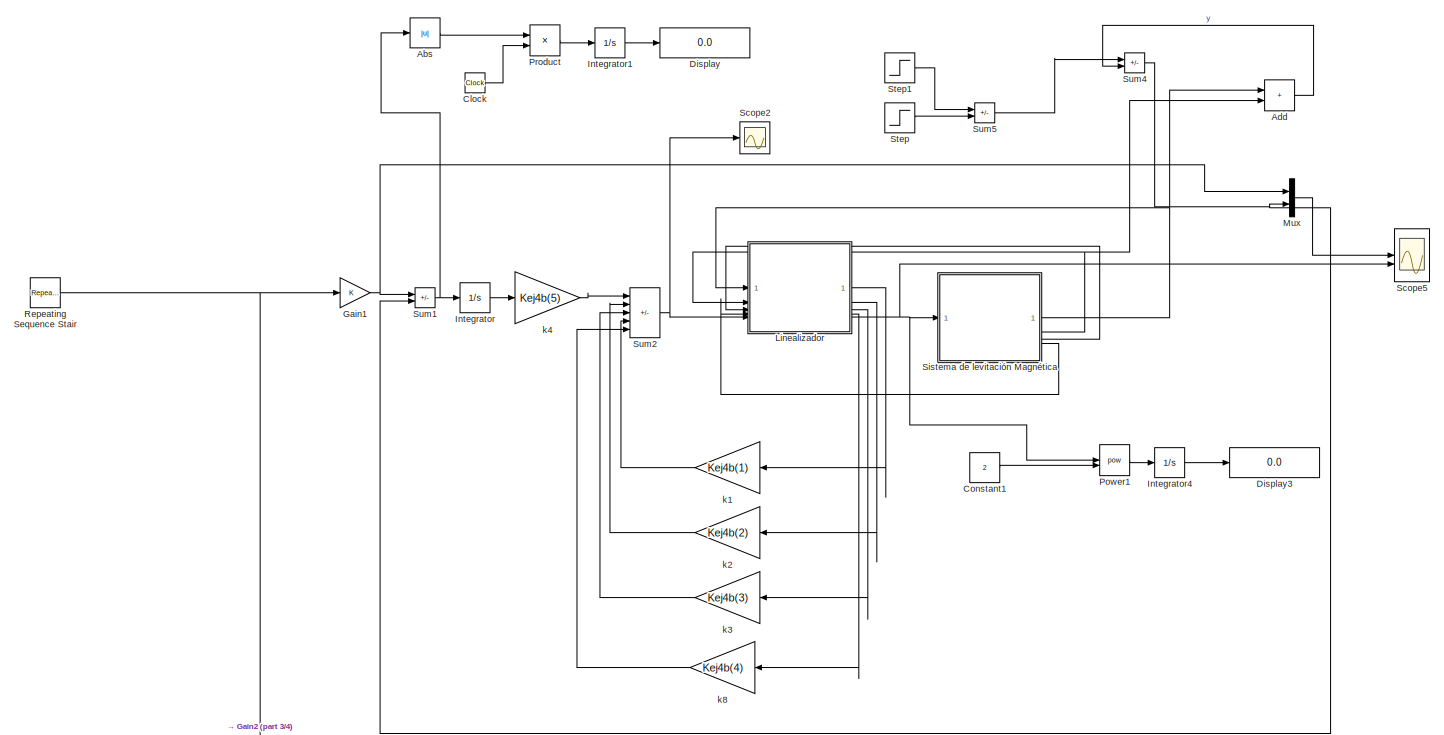
[diagram: root canvas - part 1/4, top right region]
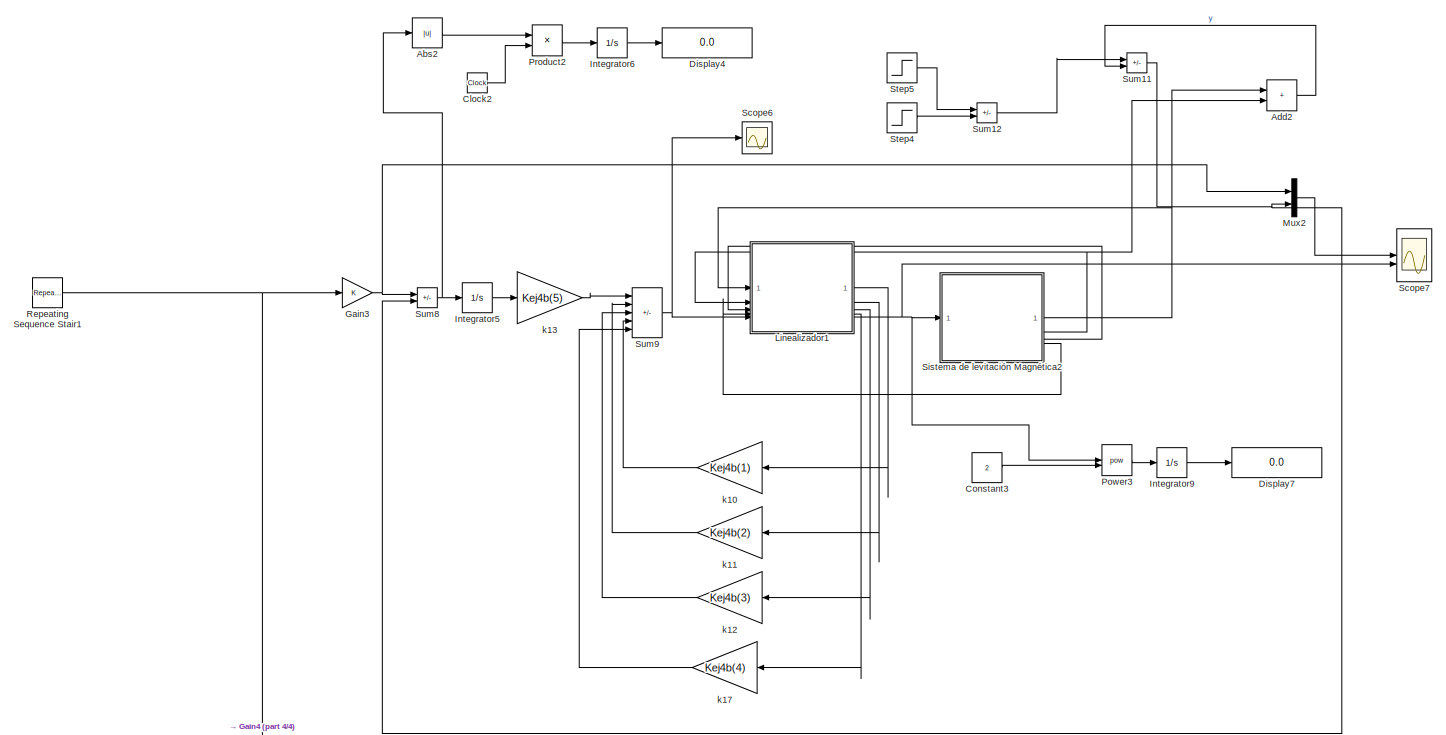
[diagram: root canvas - part 2/4, top left region]
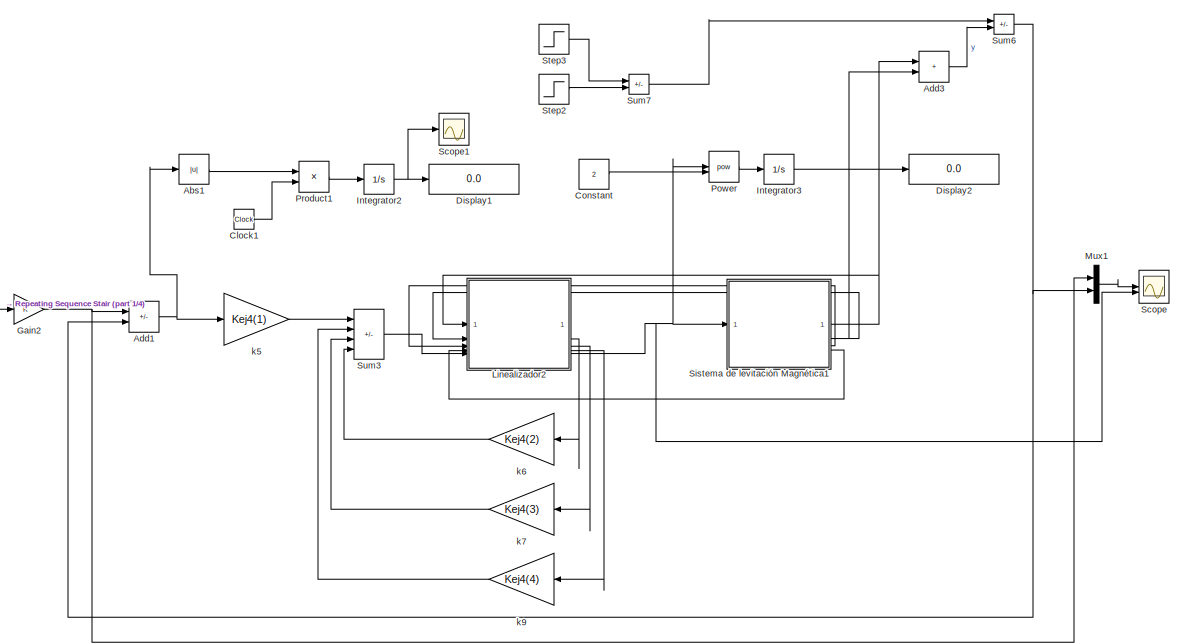
[diagram: root canvas - part 3/4, bottom right region]
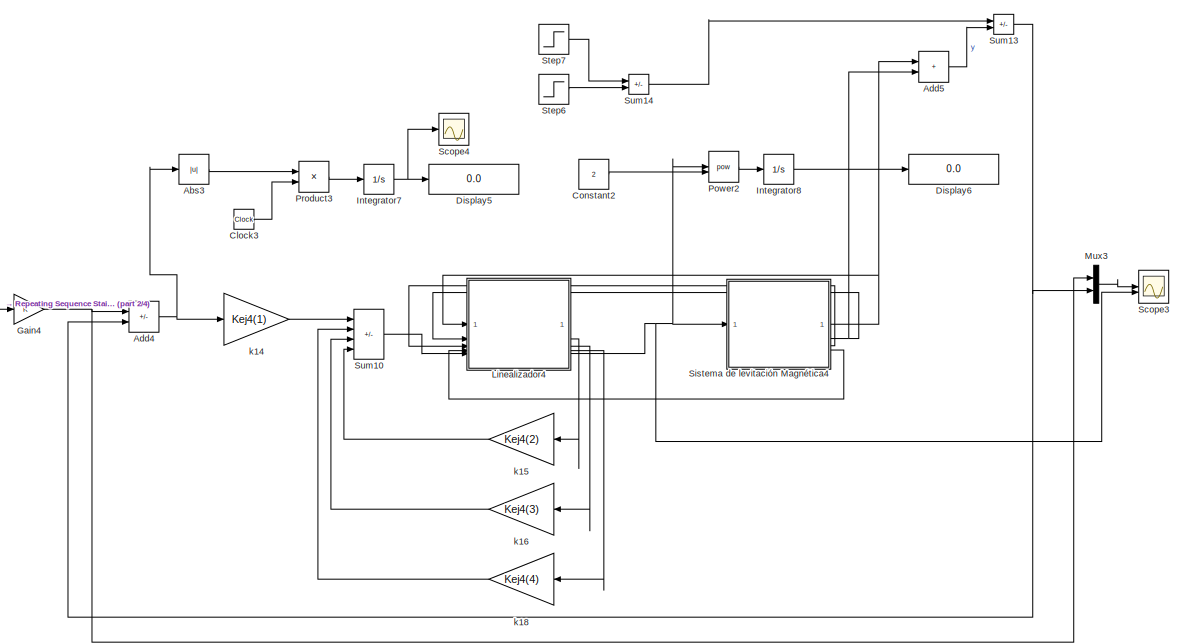
[diagram: root canvas - part 4/4, bottom left region]
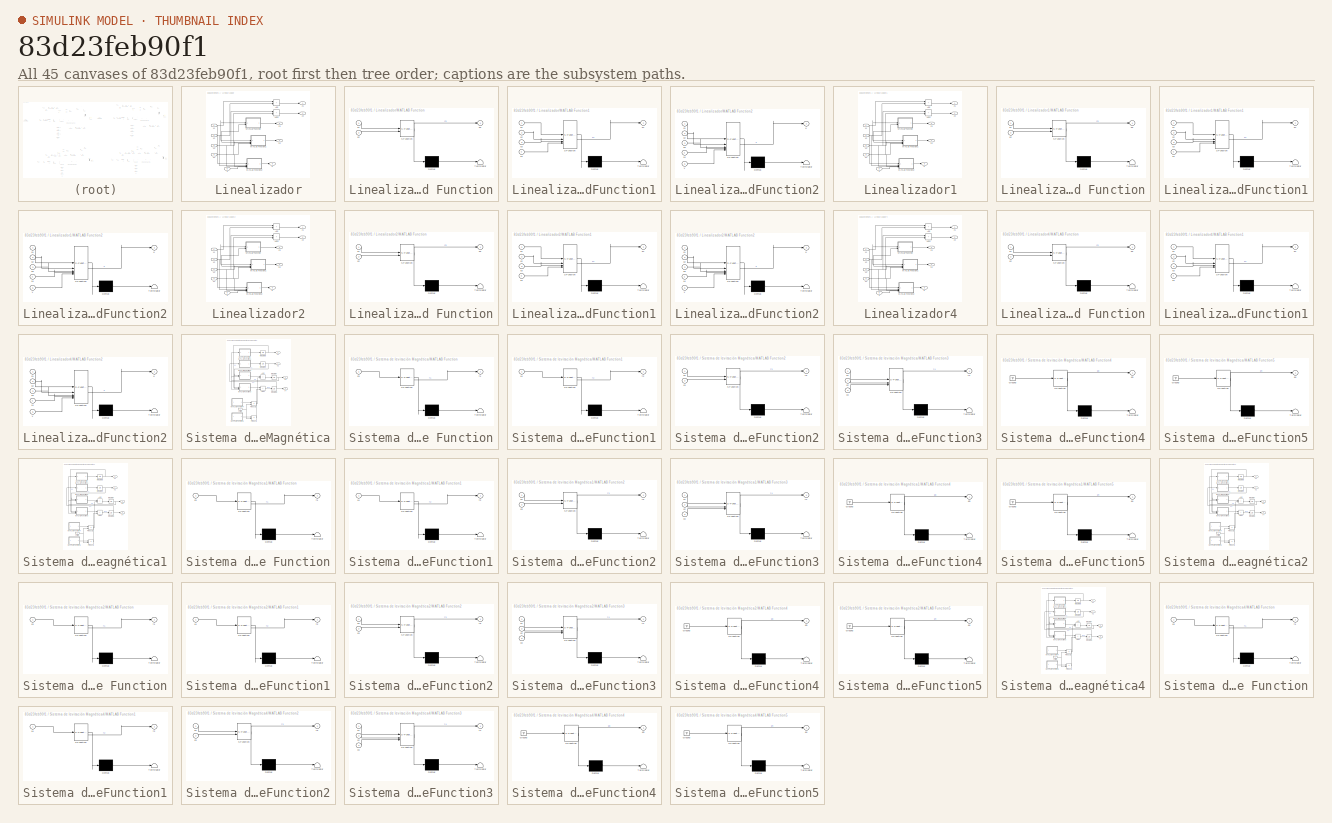
[diagram: thumbnail index - all 45 canvases of the model, root first then tree order]
MODEL slx_83d23feb90f1
KIND model
CONFIG AbsTol = auto
CONFIG EnableMultiTasking = on
CONFIG FixedStep = 0.1
CONFIG MaxStep = auto
CONFIG MinStep = auto
CONFIG RelTol = 1e-3
CONFIG SampleTimeConstraint = Unconstrained
CONFIG SolverName = VariableStepAuto
CONFIG StartTime = 0.0
CONFIG StopTime = 60
BLOCK [Abs] Abs
  SaturateOnIntegerOverflow = off
BLOCK [Abs] Abs1
  SaturateOnIntegerOverflow = off
BLOCK [Abs] Abs2
  SaturateOnIntegerOverflow = off
BLOCK [Abs] Abs3
  SaturateOnIntegerOverflow = off
BLOCK [Sum] Add
  IconShape = rectangular
BLOCK [Sum] Add1
  IconShape = rectangular
  Inputs = +-
BLOCK [Sum] Add2
  IconShape = rectangular
BLOCK [Sum] Add3
  IconShape = rectangular
BLOCK [Sum] Add4
  IconShape = rectangular
  Inputs = +-
BLOCK [Sum] Add5
  IconShape = rectangular
BLOCK [Clock] Clock
BLOCK [Clock] Clock1
BLOCK [Clock] Clock2
BLOCK [Clock] Clock3
BLOCK [Constant] Constant
  Value = 2
BLOCK [Constant] Constant1
  Value = 2
BLOCK [Constant] Constant2
  Value = 2
BLOCK [Constant] Constant3
  Value = 2
BLOCK [Display] Display
  Decimation = 1
BLOCK [Display] Display1
  Decimation = 1
BLOCK [Display] Display2
  Decimation = 1
BLOCK [Display] Display3
  Decimation = 1
BLOCK [Display] Display4
  Decimation = 1
BLOCK [Display] Display5
  Decimation = 1
BLOCK [Display] Display6
  Decimation = 1
BLOCK [Display] Display7
  Decimation = 1
BLOCK [Gain] Gain1
BLOCK [Gain] Gain2
BLOCK [Gain] Gain3
BLOCK [Gain] Gain4
BLOCK [Integrator] Integrator
BLOCK [Integrator] Integrator1
BLOCK [Integrator] Integrator2
BLOCK [Integrator] Integrator3
BLOCK [Integrator] Integrator4
BLOCK [Integrator] Integrator5
BLOCK [Integrator] Integrator6
BLOCK [Integrator] Integrator7
BLOCK [Integrator] Integrator8
BLOCK [Integrator] Integrator9
BLOCK [SubSystem] Linealizador
BLOCK [Sum] Linealizador/Add
  IconShape = rectangular
BLOCK [Sum] Linealizador/Add1
  IconShape = rectangular
BLOCK [SubSystem] Linealizador/MATLAB Function
  ErrorFcn = Stateflow.Translate.translate
  PermitHierarchicalResolution = ExplicitOnly
  SFBlockType = MATLAB Function
  TreatAsAtomicUnit = on
BLOCK [Demux] Linealizador/MATLAB Function/ Demux 
  Outputs = 1
BLOCK [S-Function] Linealizador/MATLAB Function/ SFunction 
  EnableBusSupport = on
  FunctionName = sf_sfun
  PortCounts = [2 2]
  SFcnIsStateOwnerBlock = off
  SFunctionDeploymentMode = off
  Tag = Stateflow S-Function 8
BLOCK [Terminator] Linealizador/MATLAB Function/ Terminator 
BLOCK [Inport] Linealizador/MATLAB Function/x1
BLOCK [Inport] Linealizador/MATLAB Function/x2
  Port = 2
BLOCK [Outport] Linealizador/MATLAB Function/z3
BLOCK [SubSystem] Linealizador/MATLAB Function1
  ErrorFcn = Stateflow.Translate.translate
  PermitHierarchicalResolution = ExplicitOnly
  SFBlockType = MATLAB Function
  TreatAsAtomicUnit = on
BLOCK [Demux] Linealizador/MATLAB Function1/ Demux 
  Outputs = 1
BLOCK [S-Function] Linealizador/MATLAB Function1/ SFunction 
  EnableBusSupport = on
  FunctionName = sf_sfun
  PortCounts = [4 2]
  SFcnIsStateOwnerBlock = off
  SFunctionDeploymentMode = off
  Tag = Stateflow S-Function 9
BLOCK [Terminator] Linealizador/MATLAB Function1/ Terminator 
BLOCK [Inport] Linealizador/MATLAB Function1/x1
BLOCK [Inport] Linealizador/MATLAB Function1/x2
  Port = 2
BLOCK [Inport] Linealizador/MATLAB Function1/x3
  Port = 3
BLOCK [Inport] Linealizador/MATLAB Function1/x4
  Port = 4
BLOCK [Outport] Linealizador/MATLAB Function1/z4
BLOCK [SubSystem] Linealizador/MATLAB Function2
  ErrorFcn = Stateflow.Translate.translate
  PermitHierarchicalResolution = ExplicitOnly
  SFBlockType = MATLAB Function
  TreatAsAtomicUnit = on
BLOCK [Demux] Linealizador/MATLAB Function2/ Demux 
  Outputs = 1
BLOCK [S-Function] Linealizador/MATLAB Function2/ SFunction 
  EnableBusSupport = on
  FunctionName = sf_sfun
  PortCounts = [5 2]
  SFcnIsStateOwnerBlock = off
  SFunctionDeploymentMode = off
  Tag = Stateflow S-Function 10
BLOCK [Terminator] Linealizador/MATLAB Function2/ Terminator 
BLOCK [Outport] Linealizador/MATLAB Function2/u
BLOCK [Inport] Linealizador/MATLAB Function2/v
  Port = 5
BLOCK [Inport] Linealizador/MATLAB Function2/x1
BLOCK [Inport] Linealizador/MATLAB Function2/x2
  Port = 2
BLOCK [Inport] Linealizador/MATLAB Function2/x3
  Port = 3
BLOCK [Inport] Linealizador/MATLAB Function2/x4
  Port = 4
BLOCK [Outport] Linealizador/U
  Port = 5
BLOCK [Inport] Linealizador/v
  Port = 5
BLOCK [Inport] Linealizador/x1
BLOCK [Inport] Linealizador/x2
  Port = 2
BLOCK [Inport] Linealizador/x3
  Port = 3
BLOCK [Inport] Linealizador/x4
  Port = 4
BLOCK [Outport] Linealizador/z1
BLOCK [Outport] Linealizador/z2
  Port = 2
BLOCK [Outport] Linealizador/z3
  Port = 3
BLOCK [Outport] Linealizador/z4
  Port = 4
BLOCK [SubSystem] Linealizador1
BLOCK [Sum] Linealizador1/Add
  IconShape = rectangular
BLOCK [Sum] Linealizador1/Add1
  IconShape = rectangular
BLOCK [SubSystem] Linealizador1/MATLAB Function
  ErrorFcn = Stateflow.Translate.translate
  PermitHierarchicalResolution = ExplicitOnly
  SFBlockType = MATLAB Function
  TreatAsAtomicUnit = on
BLOCK [Demux] Linealizador1/MATLAB Function/ Demux 
  Outputs = 1
BLOCK [S-Function] Linealizador1/MATLAB Function/ SFunction 
  EnableBusSupport = on
  FunctionName = sf_sfun
  PortCounts = [2 2]
  SFcnIsStateOwnerBlock = off
  SFunctionDeploymentMode = off
  Tag = Stateflow S-Function 7
BLOCK [Terminator] Linealizador1/MATLAB Function/ Terminator 
BLOCK [Inport] Linealizador1/MATLAB Function/x1
BLOCK [Inport] Linealizador1/MATLAB Function/x2
  Port = 2
BLOCK [Outport] Linealizador1/MATLAB Function/z3
BLOCK [SubSystem] Linealizador1/MATLAB Function1
  ErrorFcn = Stateflow.Translate.translate
  PermitHierarchicalResolution = ExplicitOnly
  SFBlockType = MATLAB Function
  TreatAsAtomicUnit = on
BLOCK [Demux] Linealizador1/MATLAB Function1/ Demux 
  Outputs = 1
BLOCK [S-Function] Linealizador1/MATLAB Function1/ SFunction 
  EnableBusSupport = on
  FunctionName = sf_sfun
  PortCounts = [4 2]
  SFcnIsStateOwnerBlock = off
  SFunctionDeploymentMode = off
  Tag = Stateflow S-Function 11
BLOCK [Terminator] Linealizador1/MATLAB Function1/ Terminator 
BLOCK [Inport] Linealizador1/MATLAB Function1/x1
BLOCK [Inport] Linealizador1/MATLAB Function1/x2
  Port = 2
BLOCK [Inport] Linealizador1/MATLAB Function1/x3
  Port = 3
BLOCK [Inport] Linealizador1/MATLAB Function1/x4
  Port = 4
BLOCK [Outport] Linealizador1/MATLAB Function1/z4
BLOCK [SubSystem] Linealizador1/MATLAB Function2
  ErrorFcn = Stateflow.Translate.translate
  PermitHierarchicalResolution = ExplicitOnly
  SFBlockType = MATLAB Function
  TreatAsAtomicUnit = on
BLOCK [Demux] Linealizador1/MATLAB Function2/ Demux 
  Outputs = 1
BLOCK [S-Function] Linealizador1/MATLAB Function2/ SFunction 
  EnableBusSupport = on
  FunctionName = sf_sfun
  PortCounts = [5 2]
  SFcnIsStateOwnerBlock = off
  SFunctionDeploymentMode = off
  Tag = Stateflow S-Function 12
BLOCK [Terminator] Linealizador1/MATLAB Function2/ Terminator 
BLOCK [Outport] Linealizador1/MATLAB Function2/u
BLOCK [Inport] Linealizador1/MATLAB Function2/v
  Port = 5
BLOCK [Inport] Linealizador1/MATLAB Function2/x1
BLOCK [Inport] Linealizador1/MATLAB Function2/x2
  Port = 2
BLOCK [Inport] Linealizador1/MATLAB Function2/x3
  Port = 3
BLOCK [Inport] Linealizador1/MATLAB Function2/x4
  Port = 4
BLOCK [Outport] Linealizador1/U
  Port = 5
BLOCK [Inport] Linealizador1/v
  Port = 5
BLOCK [Inport] Linealizador1/x1
BLOCK [Inport] Linealizador1/x2
  Port = 2
BLOCK [Inport] Linealizador1/x3
  Port = 3
BLOCK [Inport] Linealizador1/x4
  Port = 4
BLOCK [Outport] Linealizador1/z1
BLOCK [Outport] Linealizador1/z2
  Port = 2
BLOCK [Outport] Linealizador1/z3
  Port = 3
BLOCK [Outport] Linealizador1/z4
  Port = 4
BLOCK [SubSystem] Linealizador2
BLOCK [Sum] Linealizador2/Add
  IconShape = rectangular
BLOCK [Sum] Linealizador2/Add1
  IconShape = rectangular
BLOCK [SubSystem] Linealizador2/MATLAB Function
  ErrorFcn = Stateflow.Translate.translate
  PermitHierarchicalResolution = ExplicitOnly
  SFBlockType = MATLAB Function
  TreatAsAtomicUnit = on
BLOCK [Demux] Linealizador2/MATLAB Function/ Demux 
  Outputs = 1
BLOCK [S-Function] Linealizador2/MATLAB Function/ SFunction 
  EnableBusSupport = on
  FunctionName = sf_sfun
  PortCounts = [2 2]
  SFcnIsStateOwnerBlock = off
  SFunctionDeploymentMode = off
  Tag = Stateflow S-Function 19
BLOCK [Terminator] Linealizador2/MATLAB Function/ Terminator 
BLOCK [Inport] Linealizador2/MATLAB Function/x1
BLOCK [Inport] Linealizador2/MATLAB Function/x2
  Port = 2
BLOCK [Outport] Linealizador2/MATLAB Function/z3
BLOCK [SubSystem] Linealizador2/MATLAB Function1
  ErrorFcn = Stateflow.Translate.translate
  PermitHierarchicalResolution = ExplicitOnly
  SFBlockType = MATLAB Function
  TreatAsAtomicUnit = on
BLOCK [Demux] Linealizador2/MATLAB Function1/ Demux 
  Outputs = 1
BLOCK [S-Function] Linealizador2/MATLAB Function1/ SFunction 
  EnableBusSupport = on
  FunctionName = sf_sfun
  PortCounts = [4 2]
  SFcnIsStateOwnerBlock = off
  SFunctionDeploymentMode = off
  Tag = Stateflow S-Function 20
BLOCK [Terminator] Linealizador2/MATLAB Function1/ Terminator 
BLOCK [Inport] Linealizador2/MATLAB Function1/x1
BLOCK [Inport] Linealizador2/MATLAB Function1/x2
  Port = 2
BLOCK [Inport] Linealizador2/MATLAB Function1/x3
  Port = 3
BLOCK [Inport] Linealizador2/MATLAB Function1/x4
  Port = 4
BLOCK [Outport] Linealizador2/MATLAB Function1/z4
BLOCK [SubSystem] Linealizador2/MATLAB Function2
  ErrorFcn = Stateflow.Translate.translate
  PermitHierarchicalResolution = ExplicitOnly
  SFBlockType = MATLAB Function
  TreatAsAtomicUnit = on
BLOCK [Demux] Linealizador2/MATLAB Function2/ Demux 
  Outputs = 1
BLOCK [S-Function] Linealizador2/MATLAB Function2/ SFunction 
  EnableBusSupport = on
  FunctionName = sf_sfun
  PortCounts = [5 2]
  SFcnIsStateOwnerBlock = off
  SFunctionDeploymentMode = off
  Tag = Stateflow S-Function 21
BLOCK [Terminator] Linealizador2/MATLAB Function2/ Terminator 
BLOCK [Outport] Linealizador2/MATLAB Function2/u
BLOCK [Inport] Linealizador2/MATLAB Function2/v
  Port = 5
BLOCK [Inport] Linealizador2/MATLAB Function2/x1
BLOCK [Inport] Linealizador2/MATLAB Function2/x2
  Port = 2
BLOCK [Inport] Linealizador2/MATLAB Function2/x3
  Port = 3
BLOCK [Inport] Linealizador2/MATLAB Function2/x4
  Port = 4
BLOCK [Outport] Linealizador2/U
  Port = 5
BLOCK [Inport] Linealizador2/v
  Port = 5
BLOCK [Inport] Linealizador2/x1
BLOCK [Inport] Linealizador2/x2
  Port = 2
BLOCK [Inport] Linealizador2/x3
  Port = 3
BLOCK [Inport] Linealizador2/x4
  Port = 4
BLOCK [Outport] Linealizador2/z1
BLOCK [Outport] Linealizador2/z2
  Port = 2
BLOCK [Outport] Linealizador2/z3
  Port = 3
BLOCK [Outport] Linealizador2/z4
  Port = 4
BLOCK [SubSystem] Linealizador4
BLOCK [Sum] Linealizador4/Add
  IconShape = rectangular
BLOCK [Sum] Linealizador4/Add1
  IconShape = rectangular
BLOCK [SubSystem] Linealizador4/MATLAB Function
  ErrorFcn = Stateflow.Translate.translate
  PermitHierarchicalResolution = ExplicitOnly
  SFBlockType = MATLAB Function
  TreatAsAtomicUnit = on
BLOCK [Demux] Linealizador4/MATLAB Function/ Demux 
  Outputs = 1
BLOCK [S-Function] Linealizador4/MATLAB Function/ SFunction 
  EnableBusSupport = on
  FunctionName = sf_sfun
  PortCounts = [2 2]
  SFcnIsStateOwnerBlock = off
  SFunctionDeploymentMode = off
  Tag = Stateflow S-Function 37
BLOCK [Terminator] Linealizador4/MATLAB Function/ Terminator 
BLOCK [Inport] Linealizador4/MATLAB Function/x1
BLOCK [Inport] Linealizador4/MATLAB Function/x2
  Port = 2
BLOCK [Outport] Linealizador4/MATLAB Function/z3
BLOCK [SubSystem] Linealizador4/MATLAB Function1
  ErrorFcn = Stateflow.Translate.translate
  PermitHierarchicalResolution = ExplicitOnly
  SFBlockType = MATLAB Function
  TreatAsAtomicUnit = on
BLOCK [Demux] Linealizador4/MATLAB Function1/ Demux 
  Outputs = 1
BLOCK [S-Function] Linealizador4/MATLAB Function1/ SFunction 
  EnableBusSupport = on
  FunctionName = sf_sfun
  PortCounts = [4 2]
  SFcnIsStateOwnerBlock = off
  SFunctionDeploymentMode = off
  Tag = Stateflow S-Function 38
BLOCK [Terminator] Linealizador4/MATLAB Function1/ Terminator 
BLOCK [Inport] Linealizador4/MATLAB Function1/x1
BLOCK [Inport] Linealizador4/MATLAB Function1/x2
  Port = 2
BLOCK [Inport] Linealizador4/MATLAB Function1/x3
  Port = 3
BLOCK [Inport] Linealizador4/MATLAB Function1/x4
  Port = 4
BLOCK [Outport] Linealizador4/MATLAB Function1/z4
BLOCK [SubSystem] Linealizador4/MATLAB Function2
  ErrorFcn = Stateflow.Translate.translate
  PermitHierarchicalResolution = ExplicitOnly
  SFBlockType = MATLAB Function
  TreatAsAtomicUnit = on
BLOCK [Demux] Linealizador4/MATLAB Function2/ Demux 
  Outputs = 1
BLOCK [S-Function] Linealizador4/MATLAB Function2/ SFunction 
  EnableBusSupport = on
  FunctionName = sf_sfun
  PortCounts = [5 2]
  SFcnIsStateOwnerBlock = off
  SFunctionDeploymentMode = off
  Tag = Stateflow S-Function 39
BLOCK [Terminator] Linealizador4/MATLAB Function2/ Terminator 
BLOCK [Outport] Linealizador4/MATLAB Function2/u
BLOCK [Inport] Linealizador4/MATLAB Function2/v
  Port = 5
BLOCK [Inport] Linealizador4/MATLAB Function2/x1
BLOCK [Inport] Linealizador4/MATLAB Function2/x2
  Port = 2
BLOCK [Inport] Linealizador4/MATLAB Function2/x3
  Port = 3
BLOCK [Inport] Linealizador4/MATLAB Function2/x4
  Port = 4
BLOCK [Outport] Linealizador4/U
  Port = 5
BLOCK [Inport] Linealizador4/v
  Port = 5
BLOCK [Inport] Linealizador4/x1
BLOCK [Inport] Linealizador4/x2
  Port = 2
BLOCK [Inport] Linealizador4/x3
  Port = 3
BLOCK [Inport] Linealizador4/x4
  Port = 4
BLOCK [Outport] Linealizador4/z1
BLOCK [Outport] Linealizador4/z2
  Port = 2
BLOCK [Outport] Linealizador4/z3
  Port = 3
BLOCK [Outport] Linealizador4/z4
  Port = 4
BLOCK [Mux] Mux
  DisplayOption = bar
  Inputs = 2
BLOCK [Mux] Mux1
  DisplayOption = bar
  Inputs = 2
BLOCK [Mux] Mux2
  DisplayOption = bar
  Inputs = 2
BLOCK [Mux] Mux3
  DisplayOption = bar
  Inputs = 2
BLOCK [Math] Power
  Operator = pow
BLOCK [Math] Power1
  Operator = pow
BLOCK [Math] Power2
  Operator = pow
BLOCK [Math] Power3
  Operator = pow
BLOCK [Product] Product
BLOCK [Product] Product1
BLOCK [Product] Product2
BLOCK [Product] Product3
BLOCK [Reference] Repeating Sequence Stair  REF=simulink/Sources/Repeating
Sequence
Stair
  SourceBlock = simulink/Sources/Repeating\nSequence\nStair
  SourceType = Repeating Sequence Stair
BLOCK [Reference] Repeating Sequence Stair1  REF=simulink/Sources/Repeating
Sequence
Stair
  SourceBlock = simulink/Sources/Repeating\nSequence\nStair
  SourceType = Repeating Sequence Stair
BLOCK [Scope] Scope
  Floating = off
  NumInputPorts = 2
  ScopeSpecificationString = Simulink.scopes.TimeScopeBlockCfg('CurrentConfiguration', extmgr.ConfigurationSet(extmgr.Configuration('Core','General UI',true),extmgr.Configuration('Core','Source UI',true),extmgr.Configuration('Sources','WiredSimulink',true,'DataLoggingVariableName','y2','DataLogging',true,'DataLoggingSaveFormat','StructureWithTime'),extmgr.Configuration('Visuals','Time Domain',true,'SerializedDisplays',{struct...<+2219ch>
BLOCK [Scope] Scope1
  Floating = off
  NumInputPorts = 1
  ScopeSpecificationString = Simulink.scopes.TimeScopeBlockCfg('CurrentConfiguration', extmgr.ConfigurationSet(extmgr.Configuration('Core','General UI',true),extmgr.Configuration('Core','Source UI',true),extmgr.Configuration('Sources','WiredSimulink',true),extmgr.Configuration('Visuals','Time Domain',true,'SerializedDisplays',{struct('MinYLimReal','-1.52569','MaxYLimReal','13.73118','YLabelReal','','MinYLimMag','0.00000','Max...<+1424ch>
BLOCK [Scope] Scope2
  Floating = off
  NumInputPorts = 1
  ScopeSpecificationString = Simulink.scopes.TimeScopeBlockCfg('CurrentConfiguration', extmgr.ConfigurationSet(extmgr.Configuration('Core','General UI',true),extmgr.Configuration('Core','Source UI',true),extmgr.Configuration('Sources','WiredSimulink',true,'DataLoggingVariableName','ScopeData2','DataLoggingSaveFormat','StructureWithTime','DataLoggingLimitDataPoints',true,'DataLoggingDecimation','1','DataLoggingDecimateData',tr...<+909ch>
BLOCK [Scope] Scope3
  Floating = off
  NumInputPorts = 2
  ScopeSpecificationString = Simulink.scopes.TimeScopeBlockCfg('CurrentConfiguration', extmgr.ConfigurationSet(extmgr.Configuration('Core','General UI',true),extmgr.Configuration('Core','Source UI',true),extmgr.Configuration('Sources','WiredSimulink',true,'DataLoggingVariableName','ScopeData1','DataLogging',true,'DataLoggingSaveFormat','StructureWithTime'),extmgr.Configuration('Visuals','Time Domain',true,'SerializedDisplays'...<+2254ch>
BLOCK [Scope] Scope4
  Floating = off
  NumInputPorts = 1
  ScopeSpecificationString = Simulink.scopes.TimeScopeBlockCfg('CurrentConfiguration', extmgr.ConfigurationSet(extmgr.Configuration('Core','General UI',true),extmgr.Configuration('Core','Source UI',true),extmgr.Configuration('Sources','WiredSimulink',true,'DataLoggingVariableName','ScopeData2'),extmgr.Configuration('Visuals','Time Domain',true,'SerializedDisplays',{struct('MinYLimReal','-1.52569','MaxYLimReal','13.73118','YLa...<+1463ch>
BLOCK [Scope] Scope5
  Floating = off
  NumInputPorts = 2
  ScopeSpecificationString = Simulink.scopes.TimeScopeBlockCfg('CurrentConfiguration', extmgr.ConfigurationSet(extmgr.Configuration('Core','General UI',true,'FigureColor',[1 1 1]),extmgr.Configuration('Core','Source UI',true),extmgr.Configuration('Sources','WiredSimulink',true,'DataLoggingSaveFormat','StructureWithTime','DataLoggingDecimation','1','DataLoggingDecimateData',true,'DataLogging',true,'DataLoggingVariableName','y1...<+2729ch>
BLOCK [Scope] Scope6
  Floating = off
  NumInputPorts = 1
  ScopeSpecificationString = Simulink.scopes.TimeScopeBlockCfg('CurrentConfiguration', extmgr.ConfigurationSet(extmgr.Configuration('Core','General UI',true),extmgr.Configuration('Core','Source UI',true),extmgr.Configuration('Sources','WiredSimulink',true,'DataLoggingVariableName','ScopeData3','DataLoggingSaveFormat','StructureWithTime','DataLoggingLimitDataPoints',true,'DataLoggingDecimation','1','DataLoggingDecimateData',tr...<+909ch>
BLOCK [Scope] Scope7
  Floating = off
  NumInputPorts = 2
  ScopeSpecificationString = Simulink.scopes.TimeScopeBlockCfg('CurrentConfiguration', extmgr.ConfigurationSet(extmgr.Configuration('Core','General UI',true,'FigureColor',[1 1 1]),extmgr.Configuration('Core','Source UI',true),extmgr.Configuration('Sources','WiredSimulink',true,'DataLoggingSaveFormat','StructureWithTime','DataLoggingDecimation','1','DataLoggingDecimateData',true,'DataLogging',true,'DataLoggingVariableName','Sc...<+2739ch>
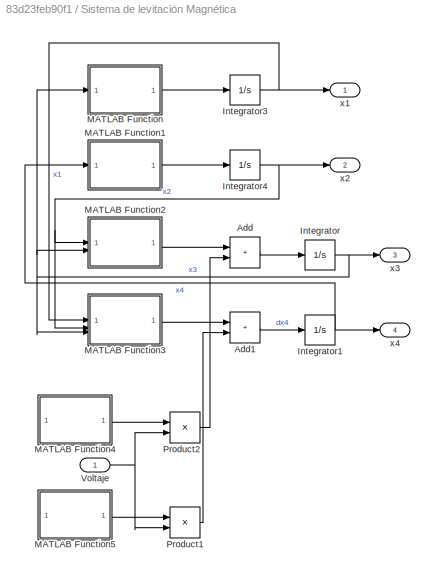
BLOCK [SubSystem] Sistema de levitación Magnética
BLOCK [Sum] Sistema de levitación Magnética/Add
  IconShape = rectangular
BLOCK [Sum] Sistema de levitación Magnética/Add1
  IconShape = rectangular
BLOCK [Integrator] Sistema de levitación Magnética/Integrator
BLOCK [Integrator] Sistema de levitación Magnética/Integrator1
BLOCK [Integrator] Sistema de levitación Magnética/Integrator3
BLOCK [Integrator] Sistema de levitación Magnética/Integrator4
BLOCK [SubSystem] Sistema de levitación Magnética/MATLAB Function
  ErrorFcn = Stateflow.Translate.translate
  PermitHierarchicalResolution = ExplicitOnly
  SFBlockType = MATLAB Function
  TreatAsAtomicUnit = on
BLOCK [Demux] Sistema de levitación Magnética/MATLAB Function/ Demux 
  Outputs = 1
BLOCK [S-Function] Sistema de levitación Magnética/MATLAB Function/ SFunction 
  EnableBusSupport = on
  FunctionName = sf_sfun
  PortCounts = [1 2]
  SFcnIsStateOwnerBlock = off
  SFunctionDeploymentMode = off
  Tag = Stateflow S-Function 2
BLOCK [Terminator] Sistema de levitación Magnética/MATLAB Function/ Terminator 
BLOCK [Outport] Sistema de levitación Magnética/MATLAB Function/f1
BLOCK [Inport] Sistema de levitación Magnética/MATLAB Function/x3
BLOCK [SubSystem] Sistema de levitación Magnética/MATLAB Function1
  ErrorFcn = Stateflow.Translate.translate
  PermitHierarchicalResolution = ExplicitOnly
  SFBlockType = MATLAB Function
  TreatAsAtomicUnit = on
BLOCK [Demux] Sistema de levitación Magnética/MATLAB Function1/ Demux 
  Outputs = 1
BLOCK [S-Function] Sistema de levitación Magnética/MATLAB Function1/ SFunction 
  EnableBusSupport = on
  FunctionName = sf_sfun
  PortCounts = [1 2]
  SFcnIsStateOwnerBlock = off
  SFunctionDeploymentMode = off
  Tag = Stateflow S-Function 1
BLOCK [Terminator] Sistema de levitación Magnética/MATLAB Function1/ Terminator 
BLOCK [Outport] Sistema de levitación Magnética/MATLAB Function1/f2
BLOCK [Inport] Sistema de levitación Magnética/MATLAB Function1/x4
BLOCK [SubSystem] Sistema de levitación Magnética/MATLAB Function2
  ErrorFcn = Stateflow.Translate.translate
  PermitHierarchicalResolution = ExplicitOnly
  SFBlockType = MATLAB Function
  TreatAsAtomicUnit = on
BLOCK [Demux] Sistema de levitación Magnética/MATLAB Function2/ Demux 
  Outputs = 1
BLOCK [S-Function] Sistema de levitación Magnética/MATLAB Function2/ SFunction 
  EnableBusSupport = on
  FunctionName = sf_sfun
  PortCounts = [2 2]
  SFcnIsStateOwnerBlock = off
  SFunctionDeploymentMode = off
  Tag = Stateflow S-Function 3
BLOCK [Terminator] Sistema de levitación Magnética/MATLAB Function2/ Terminator 
BLOCK [Outport] Sistema de levitación Magnética/MATLAB Function2/f3
BLOCK [Inport] Sistema de levitación Magnética/MATLAB Function2/x2
BLOCK [Inport] Sistema de levitación Magnética/MATLAB Function2/x3
  Port = 2
BLOCK [SubSystem] Sistema de levitación Magnética/MATLAB Function3
  ErrorFcn = Stateflow.Translate.translate
  PermitHierarchicalResolution = ExplicitOnly
  SFBlockType = MATLAB Function
  TreatAsAtomicUnit = on
BLOCK [Demux] Sistema de levitación Magnética/MATLAB Function3/ Demux 
  Outputs = 1
BLOCK [S-Function] Sistema de levitación Magnética/MATLAB Function3/ SFunction 
  EnableBusSupport = on
  FunctionName = sf_sfun
  PortCounts = [3 2]
  SFcnIsStateOwnerBlock = off
  SFunctionDeploymentMode = off
  Tag = Stateflow S-Function 4
BLOCK [Terminator] Sistema de levitación Magnética/MATLAB Function3/ Terminator 
BLOCK [Outport] Sistema de levitación Magnética/MATLAB Function3/f4
BLOCK [Inport] Sistema de levitación Magnética/MATLAB Function3/x1
BLOCK [Inport] Sistema de levitación Magnética/MATLAB Function3/x2
  Port = 2
BLOCK [Inport] Sistema de levitación Magnética/MATLAB Function3/x3
  Port = 3
BLOCK [SubSystem] Sistema de levitación Magnética/MATLAB Function4
  ErrorFcn = Stateflow.Translate.translate
  PermitHierarchicalResolution = ExplicitOnly
  SFBlockType = MATLAB Function
  TreatAsAtomicUnit = on
BLOCK [Demux] Sistema de levitación Magnética/MATLAB Function4/ Demux 
  Outputs = 1
BLOCK [Ground] Sistema de levitación Magnética/MATLAB Function4/ Ground 
BLOCK [S-Function] Sistema de levitación Magnética/MATLAB Function4/ SFunction 
  EnableBusSupport = on
  FunctionName = sf_sfun
  PortCounts = [1 2]
  SFcnIsStateOwnerBlock = off
  SFunctionDeploymentMode = off
  Tag = Stateflow S-Function 5
BLOCK [Terminator] Sistema de levitación Magnética/MATLAB Function4/ Terminator 
BLOCK [Outport] Sistema de levitación Magnética/MATLAB Function4/g3
BLOCK [SubSystem] Sistema de levitación Magnética/MATLAB Function5
  ErrorFcn = Stateflow.Translate.translate
  PermitHierarchicalResolution = ExplicitOnly
  SFBlockType = MATLAB Function
  TreatAsAtomicUnit = on
BLOCK [Demux] Sistema de levitación Magnética/MATLAB Function5/ Demux 
  Outputs = 1
BLOCK [Ground] Sistema de levitación Magnética/MATLAB Function5/ Ground 
BLOCK [S-Function] Sistema de levitación Magnética/MATLAB Function5/ SFunction 
  EnableBusSupport = on
  FunctionName = sf_sfun
  PortCounts = [1 2]
  SFcnIsStateOwnerBlock = off
  SFunctionDeploymentMode = off
  Tag = Stateflow S-Function 6
BLOCK [Terminator] Sistema de levitación Magnética/MATLAB Function5/ Terminator 
BLOCK [Outport] Sistema de levitación Magnética/MATLAB Function5/g4
BLOCK [Product] Sistema de levitación Magnética/Product1
BLOCK [Product] Sistema de levitación Magnética/Product2
BLOCK [Inport] Sistema de levitación Magnética/Voltaje
BLOCK [Outport] Sistema de levitación Magnética/x1
BLOCK [Outport] Sistema de levitación Magnética/x2
  Port = 2
BLOCK [Outport] Sistema de levitación Magnética/x3
  Port = 3
BLOCK [Outport] Sistema de levitación Magnética/x4
  Port = 4
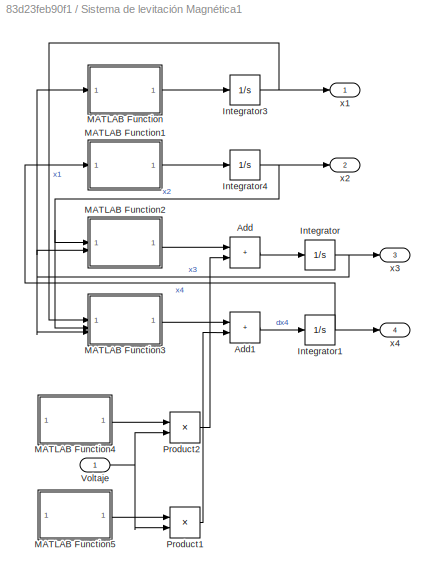
BLOCK [SubSystem] Sistema de levitación Magnética1
BLOCK [Sum] Sistema de levitación Magnética1/Add
  IconShape = rectangular
BLOCK [Sum] Sistema de levitación Magnética1/Add1
  IconShape = rectangular
BLOCK [Integrator] Sistema de levitación Magnética1/Integrator
BLOCK [Integrator] Sistema de levitación Magnética1/Integrator1
BLOCK [Integrator] Sistema de levitación Magnética1/Integrator3
BLOCK [Integrator] Sistema de levitación Magnética1/Integrator4
BLOCK [SubSystem] Sistema de levitación Magnética1/MATLAB Function
  ErrorFcn = Stateflow.Translate.translate
  PermitHierarchicalResolution = ExplicitOnly
  SFBlockType = MATLAB Function
  TreatAsAtomicUnit = on
BLOCK [Demux] Sistema de levitación Magnética1/MATLAB Function/ Demux 
  Outputs = 1
BLOCK [S-Function] Sistema de levitación Magnética1/MATLAB Function/ SFunction 
  EnableBusSupport = on
  FunctionName = sf_sfun
  PortCounts = [1 2]
  SFcnIsStateOwnerBlock = off
  SFunctionDeploymentMode = off
  Tag = Stateflow S-Function 13
BLOCK [Terminator] Sistema de levitación Magnética1/MATLAB Function/ Terminator 
BLOCK [Outport] Sistema de levitación Magnética1/MATLAB Function/f1
BLOCK [Inport] Sistema de levitación Magnética1/MATLAB Function/x3
BLOCK [SubSystem] Sistema de levitación Magnética1/MATLAB Function1
  ErrorFcn = Stateflow.Translate.translate
  PermitHierarchicalResolution = ExplicitOnly
  SFBlockType = MATLAB Function
  TreatAsAtomicUnit = on
BLOCK [Demux] Sistema de levitación Magnética1/MATLAB Function1/ Demux 
  Outputs = 1
BLOCK [S-Function] Sistema de levitación Magnética1/MATLAB Function1/ SFunction 
  EnableBusSupport = on
  FunctionName = sf_sfun
  PortCounts = [1 2]
  SFcnIsStateOwnerBlock = off
  SFunctionDeploymentMode = off
  Tag = Stateflow S-Function 14
BLOCK [Terminator] Sistema de levitación Magnética1/MATLAB Function1/ Terminator 
BLOCK [Outport] Sistema de levitación Magnética1/MATLAB Function1/f2
BLOCK [Inport] Sistema de levitación Magnética1/MATLAB Function1/x4
BLOCK [SubSystem] Sistema de levitación Magnética1/MATLAB Function2
  ErrorFcn = Stateflow.Translate.translate
  PermitHierarchicalResolution = ExplicitOnly
  SFBlockType = MATLAB Function
  TreatAsAtomicUnit = on
BLOCK [Demux] Sistema de levitación Magnética1/MATLAB Function2/ Demux 
  Outputs = 1
BLOCK [S-Function] Sistema de levitación Magnética1/MATLAB Function2/ SFunction 
  EnableBusSupport = on
  FunctionName = sf_sfun
  PortCounts = [2 2]
  SFcnIsStateOwnerBlock = off
  SFunctionDeploymentMode = off
  Tag = Stateflow S-Function 15
BLOCK [Terminator] Sistema de levitación Magnética1/MATLAB Function2/ Terminator 
BLOCK [Outport] Sistema de levitación Magnética1/MATLAB Function2/f3
BLOCK [Inport] Sistema de levitación Magnética1/MATLAB Function2/x2
BLOCK [Inport] Sistema de levitación Magnética1/MATLAB Function2/x3
  Port = 2
BLOCK [SubSystem] Sistema de levitación Magnética1/MATLAB Function3
  ErrorFcn = Stateflow.Translate.translate
  PermitHierarchicalResolution = ExplicitOnly
  SFBlockType = MATLAB Function
  TreatAsAtomicUnit = on
BLOCK [Demux] Sistema de levitación Magnética1/MATLAB Function3/ Demux 
  Outputs = 1
BLOCK [S-Function] Sistema de levitación Magnética1/MATLAB Function3/ SFunction 
  EnableBusSupport = on
  FunctionName = sf_sfun
  PortCounts = [3 2]
  SFcnIsStateOwnerBlock = off
  SFunctionDeploymentMode = off
  Tag = Stateflow S-Function 16
BLOCK [Terminator] Sistema de levitación Magnética1/MATLAB Function3/ Terminator 
BLOCK [Outport] Sistema de levitación Magnética1/MATLAB Function3/f4
BLOCK [Inport] Sistema de levitación Magnética1/MATLAB Function3/x1
BLOCK [Inport] Sistema de levitación Magnética1/MATLAB Function3/x2
  Port = 2
BLOCK [Inport] Sistema de levitación Magnética1/MATLAB Function3/x3
  Port = 3
BLOCK [SubSystem] Sistema de levitación Magnética1/MATLAB Function4
  ErrorFcn = Stateflow.Translate.translate
  PermitHierarchicalResolution = ExplicitOnly
  SFBlockType = MATLAB Function
  TreatAsAtomicUnit = on
BLOCK [Demux] Sistema de levitación Magnética1/MATLAB Function4/ Demux 
  Outputs = 1
BLOCK [Ground] Sistema de levitación Magnética1/MATLAB Function4/ Ground 
BLOCK [S-Function] Sistema de levitación Magnética1/MATLAB Function4/ SFunction 
  EnableBusSupport = on
  FunctionName = sf_sfun
  PortCounts = [1 2]
  SFcnIsStateOwnerBlock = off
  SFunctionDeploymentMode = off
  Tag = Stateflow S-Function 17
BLOCK [Terminator] Sistema de levitación Magnética1/MATLAB Function4/ Terminator 
BLOCK [Outport] Sistema de levitación Magnética1/MATLAB Function4/g3
BLOCK [SubSystem] Sistema de levitación Magnética1/MATLAB Function5
  ErrorFcn = Stateflow.Translate.translate
  PermitHierarchicalResolution = ExplicitOnly
  SFBlockType = MATLAB Function
  TreatAsAtomicUnit = on
BLOCK [Demux] Sistema de levitación Magnética1/MATLAB Function5/ Demux 
  Outputs = 1
BLOCK [Ground] Sistema de levitación Magnética1/MATLAB Function5/ Ground 
BLOCK [S-Function] Sistema de levitación Magnética1/MATLAB Function5/ SFunction 
  EnableBusSupport = on
  FunctionName = sf_sfun
  PortCounts = [1 2]
  SFcnIsStateOwnerBlock = off
  SFunctionDeploymentMode = off
  Tag = Stateflow S-Function 18
BLOCK [Terminator] Sistema de levitación Magnética1/MATLAB Function5/ Terminator 
BLOCK [Outport] Sistema de levitación Magnética1/MATLAB Function5/g4
BLOCK [Product] Sistema de levitación Magnética1/Product1
BLOCK [Product] Sistema de levitación Magnética1/Product2
BLOCK [Inport] Sistema de levitación Magnética1/Voltaje
BLOCK [Outport] Sistema de levitación Magnética1/x1
BLOCK [Outport] Sistema de levitación Magnética1/x2
  Port = 2
BLOCK [Outport] Sistema de levitación Magnética1/x3
  Port = 3
BLOCK [Outport] Sistema de levitación Magnética1/x4
  Port = 4
BLOCK [SubSystem] Sistema de levitación Magnética2
BLOCK [Sum] Sistema de levitación Magnética2/Add
  IconShape = rectangular
BLOCK [Sum] Sistema de levitación Magnética2/Add1
  IconShape = rectangular
BLOCK [Integrator] Sistema de levitación Magnética2/Integrator
BLOCK [Integrator] Sistema de levitación Magnética2/Integrator1
BLOCK [Integrator] Sistema de levitación Magnética2/Integrator3
BLOCK [Integrator] Sistema de levitación Magnética2/Integrator4
BLOCK [SubSystem] Sistema de levitación Magnética2/MATLAB Function
  ErrorFcn = Stateflow.Translate.translate
  PermitHierarchicalResolution = ExplicitOnly
  SFBlockType = MATLAB Function
  TreatAsAtomicUnit = on
BLOCK [Demux] Sistema de levitación Magnética2/MATLAB Function/ Demux 
  Outputs = 1
BLOCK [S-Function] Sistema de levitación Magnética2/MATLAB Function/ SFunction 
  EnableBusSupport = on
  FunctionName = sf_sfun
  PortCounts = [1 2]
  SFcnIsStateOwnerBlock = off
  SFunctionDeploymentMode = off
  Tag = Stateflow S-Function 25
BLOCK [Terminator] Sistema de levitación Magnética2/MATLAB Function/ Terminator 
BLOCK [Outport] Sistema de levitación Magnética2/MATLAB Function/f1
BLOCK [Inport] Sistema de levitación Magnética2/MATLAB Function/x3
BLOCK [SubSystem] Sistema de levitación Magnética2/MATLAB Function1
  ErrorFcn = Stateflow.Translate.translate
  PermitHierarchicalResolution = ExplicitOnly
  SFBlockType = MATLAB Function
  TreatAsAtomicUnit = on
BLOCK [Demux] Sistema de levitación Magnética2/MATLAB Function1/ Demux 
  Outputs = 1
BLOCK [S-Function] Sistema de levitación Magnética2/MATLAB Function1/ SFunction 
  EnableBusSupport = on
  FunctionName = sf_sfun
  PortCounts = [1 2]
  SFcnIsStateOwnerBlock = off
  SFunctionDeploymentMode = off
  Tag = Stateflow S-Function 26
BLOCK [Terminator] Sistema de levitación Magnética2/MATLAB Function1/ Terminator 
BLOCK [Outport] Sistema de levitación Magnética2/MATLAB Function1/f2
BLOCK [Inport] Sistema de levitación Magnética2/MATLAB Function1/x4
BLOCK [SubSystem] Sistema de levitación Magnética2/MATLAB Function2
  ErrorFcn = Stateflow.Translate.translate
  PermitHierarchicalResolution = ExplicitOnly
  SFBlockType = MATLAB Function
  TreatAsAtomicUnit = on
BLOCK [Demux] Sistema de levitación Magnética2/MATLAB Function2/ Demux 
  Outputs = 1
BLOCK [S-Function] Sistema de levitación Magnética2/MATLAB Function2/ SFunction 
  EnableBusSupport = on
  FunctionName = sf_sfun
  PortCounts = [2 2]
  SFcnIsStateOwnerBlock = off
  SFunctionDeploymentMode = off
  Tag = Stateflow S-Function 27
BLOCK [Terminator] Sistema de levitación Magnética2/MATLAB Function2/ Terminator 
BLOCK [Outport] Sistema de levitación Magnética2/MATLAB Function2/f3
BLOCK [Inport] Sistema de levitación Magnética2/MATLAB Function2/x2
BLOCK [Inport] Sistema de levitación Magnética2/MATLAB Function2/x3
  Port = 2
BLOCK [SubSystem] Sistema de levitación Magnética2/MATLAB Function3
  ErrorFcn = Stateflow.Translate.translate
  PermitHierarchicalResolution = ExplicitOnly
  SFBlockType = MATLAB Function
  TreatAsAtomicUnit = on
BLOCK [Demux] Sistema de levitación Magnética2/MATLAB Function3/ Demux 
  Outputs = 1
BLOCK [S-Function] Sistema de levitación Magnética2/MATLAB Function3/ SFunction 
  EnableBusSupport = on
  FunctionName = sf_sfun
  PortCounts = [3 2]
  SFcnIsStateOwnerBlock = off
  SFunctionDeploymentMode = off
  Tag = Stateflow S-Function 28
BLOCK [Terminator] Sistema de levitación Magnética2/MATLAB Function3/ Terminator 
BLOCK [Outport] Sistema de levitación Magnética2/MATLAB Function3/f4
BLOCK [Inport] Sistema de levitación Magnética2/MATLAB Function3/x1
BLOCK [Inport] Sistema de levitación Magnética2/MATLAB Function3/x2
  Port = 2
BLOCK [Inport] Sistema de levitación Magnética2/MATLAB Function3/x3
  Port = 3
BLOCK [SubSystem] Sistema de levitación Magnética2/MATLAB Function4
  ErrorFcn = Stateflow.Translate.translate
  PermitHierarchicalResolution = ExplicitOnly
  SFBlockType = MATLAB Function
  TreatAsAtomicUnit = on
BLOCK [Demux] Sistema de levitación Magnética2/MATLAB Function4/ Demux 
  Outputs = 1
BLOCK [Ground] Sistema de levitación Magnética2/MATLAB Function4/ Ground 
BLOCK [S-Function] Sistema de levitación Magnética2/MATLAB Function4/ SFunction 
  EnableBusSupport = on
  FunctionName = sf_sfun
  PortCounts = [1 2]
  SFcnIsStateOwnerBlock = off
  SFunctionDeploymentMode = off
  Tag = Stateflow S-Function 29
BLOCK [Terminator] Sistema de levitación Magnética2/MATLAB Function4/ Terminator 
BLOCK [Outport] Sistema de levitación Magnética2/MATLAB Function4/g3
BLOCK [SubSystem] Sistema de levitación Magnética2/MATLAB Function5
  ErrorFcn = Stateflow.Translate.translate
  PermitHierarchicalResolution = ExplicitOnly
  SFBlockType = MATLAB Function
  TreatAsAtomicUnit = on
BLOCK [Demux] Sistema de levitación Magnética2/MATLAB Function5/ Demux 
  Outputs = 1
BLOCK [Ground] Sistema de levitación Magnética2/MATLAB Function5/ Ground 
BLOCK [S-Function] Sistema de levitación Magnética2/MATLAB Function5/ SFunction 
  EnableBusSupport = on
  FunctionName = sf_sfun
  PortCounts = [1 2]
  SFcnIsStateOwnerBlock = off
  SFunctionDeploymentMode = off
  Tag = Stateflow S-Function 30
BLOCK [Terminator] Sistema de levitación Magnética2/MATLAB Function5/ Terminator 
BLOCK [Outport] Sistema de levitación Magnética2/MATLAB Function5/g4
BLOCK [Product] Sistema de levitación Magnética2/Product1
BLOCK [Product] Sistema de levitación Magnética2/Product2
BLOCK [Inport] Sistema de levitación Magnética2/Voltaje
BLOCK [Outport] Sistema de levitación Magnética2/x1
BLOCK [Outport] Sistema de levitación Magnética2/x2
  Port = 2
BLOCK [Outport] Sistema de levitación Magnética2/x3
  Port = 3
BLOCK [Outport] Sistema de levitación Magnética2/x4
  Port = 4
BLOCK [SubSystem] Sistema de levitación Magnética4
BLOCK [Sum] Sistema de levitación Magnética4/Add
  IconShape = rectangular
BLOCK [Sum] Sistema de levitación Magnética4/Add1
  IconShape = rectangular
BLOCK [Integrator] Sistema de levitación Magnética4/Integrator
BLOCK [Integrator] Sistema de levitación Magnética4/Integrator1
BLOCK [Integrator] Sistema de levitación Magnética4/Integrator3
BLOCK [Integrator] Sistema de levitación Magnética4/Integrator4
BLOCK [SubSystem] Sistema de levitación Magnética4/MATLAB Function
  ErrorFcn = Stateflow.Translate.translate
  PermitHierarchicalResolution = ExplicitOnly
  SFBlockType = MATLAB Function
  TreatAsAtomicUnit = on
BLOCK [Demux] Sistema de levitación Magnética4/MATLAB Function/ Demux 
  Outputs = 1
BLOCK [S-Function] Sistema de levitación Magnética4/MATLAB Function/ SFunction 
  EnableBusSupport = on
  FunctionName = sf_sfun
  PortCounts = [1 2]
  SFcnIsStateOwnerBlock = off
  SFunctionDeploymentMode = off
  Tag = Stateflow S-Function 22
BLOCK [Terminator] Sistema de levitación Magnética4/MATLAB Function/ Terminator 
BLOCK [Outport] Sistema de levitación Magnética4/MATLAB Function/f1
BLOCK [Inport] Sistema de levitación Magnética4/MATLAB Function/x3
BLOCK [SubSystem] Sistema de levitación Magnética4/MATLAB Function1
  ErrorFcn = Stateflow.Translate.translate
  PermitHierarchicalResolution = ExplicitOnly
  SFBlockType = MATLAB Function
  TreatAsAtomicUnit = on
BLOCK [Demux] Sistema de levitación Magnética4/MATLAB Function1/ Demux 
  Outputs = 1
BLOCK [S-Function] Sistema de levitación Magnética4/MATLAB Function1/ SFunction 
  EnableBusSupport = on
  FunctionName = sf_sfun
  PortCounts = [1 2]
  SFcnIsStateOwnerBlock = off
  SFunctionDeploymentMode = off
  Tag = Stateflow S-Function 23
BLOCK [Terminator] Sistema de levitación Magnética4/MATLAB Function1/ Terminator 
BLOCK [Outport] Sistema de levitación Magnética4/MATLAB Function1/f2
BLOCK [Inport] Sistema de levitación Magnética4/MATLAB Function1/x4
BLOCK [SubSystem] Sistema de levitación Magnética4/MATLAB Function2
  ErrorFcn = Stateflow.Translate.translate
  PermitHierarchicalResolution = ExplicitOnly
  SFBlockType = MATLAB Function
  TreatAsAtomicUnit = on
BLOCK [Demux] Sistema de levitación Magnética4/MATLAB Function2/ Demux 
  Outputs = 1
BLOCK [S-Function] Sistema de levitación Magnética4/MATLAB Function2/ SFunction 
  EnableBusSupport = on
  FunctionName = sf_sfun
  PortCounts = [2 2]
  SFcnIsStateOwnerBlock = off
  SFunctionDeploymentMode = off
  Tag = Stateflow S-Function 24
BLOCK [Terminator] Sistema de levitación Magnética4/MATLAB Function2/ Terminator 
BLOCK [Outport] Sistema de levitación Magnética4/MATLAB Function2/f3
BLOCK [Inport] Sistema de levitación Magnética4/MATLAB Function2/x2
BLOCK [Inport] Sistema de levitación Magnética4/MATLAB Function2/x3
  Port = 2
BLOCK [SubSystem] Sistema de levitación Magnética4/MATLAB Function3
  ErrorFcn = Stateflow.Translate.translate
  PermitHierarchicalResolution = ExplicitOnly
  SFBlockType = MATLAB Function
  TreatAsAtomicUnit = on
BLOCK [Demux] Sistema de levitación Magnética4/MATLAB Function3/ Demux 
  Outputs = 1
BLOCK [S-Function] Sistema de levitación Magnética4/MATLAB Function3/ SFunction 
  EnableBusSupport = on
  FunctionName = sf_sfun
  PortCounts = [3 2]
  SFcnIsStateOwnerBlock = off
  SFunctionDeploymentMode = off
  Tag = Stateflow S-Function 40
BLOCK [Terminator] Sistema de levitación Magnética4/MATLAB Function3/ Terminator 
BLOCK [Outport] Sistema de levitación Magnética4/MATLAB Function3/f4
BLOCK [Inport] Sistema de levitación Magnética4/MATLAB Function3/x1
BLOCK [Inport] Sistema de levitación Magnética4/MATLAB Function3/x2
  Port = 2
BLOCK [Inport] Sistema de levitación Magnética4/MATLAB Function3/x3
  Port = 3
BLOCK [SubSystem] Sistema de levitación Magnética4/MATLAB Function4
  ErrorFcn = Stateflow.Translate.translate
  PermitHierarchicalResolution = ExplicitOnly
  SFBlockType = MATLAB Function
  TreatAsAtomicUnit = on
BLOCK [Demux] Sistema de levitación Magnética4/MATLAB Function4/ Demux 
  Outputs = 1
BLOCK [Ground] Sistema de levitación Magnética4/MATLAB Function4/ Ground 
BLOCK [S-Function] Sistema de levitación Magnética4/MATLAB Function4/ SFunction 
  EnableBusSupport = on
  FunctionName = sf_sfun
  PortCounts = [1 2]
  SFcnIsStateOwnerBlock = off
  SFunctionDeploymentMode = off
  Tag = Stateflow S-Function 41
BLOCK [Terminator] Sistema de levitación Magnética4/MATLAB Function4/ Terminator 
BLOCK [Outport] Sistema de levitación Magnética4/MATLAB Function4/g3
BLOCK [SubSystem] Sistema de levitación Magnética4/MATLAB Function5
  ErrorFcn = Stateflow.Translate.translate
  PermitHierarchicalResolution = ExplicitOnly
  SFBlockType = MATLAB Function
  TreatAsAtomicUnit = on
BLOCK [Demux] Sistema de levitación Magnética4/MATLAB Function5/ Demux 
  Outputs = 1
BLOCK [Ground] Sistema de levitación Magnética4/MATLAB Function5/ Ground 
BLOCK [S-Function] Sistema de levitación Magnética4/MATLAB Function5/ SFunction 
  EnableBusSupport = on
  FunctionName = sf_sfun
  PortCounts = [1 2]
  SFcnIsStateOwnerBlock = off
  SFunctionDeploymentMode = off
  Tag = Stateflow S-Function 42
BLOCK [Terminator] Sistema de levitación Magnética4/MATLAB Function5/ Terminator 
BLOCK [Outport] Sistema de levitación Magnética4/MATLAB Function5/g4
BLOCK [Product] Sistema de levitación Magnética4/Product1
BLOCK [Product] Sistema de levitación Magnética4/Product2
BLOCK [Inport] Sistema de levitación Magnética4/Voltaje
BLOCK [Outport] Sistema de levitación Magnética4/x1
BLOCK [Outport] Sistema de levitación Magnética4/x2
  Port = 2
BLOCK [Outport] Sistema de levitación Magnética4/x3
  Port = 3
BLOCK [Outport] Sistema de levitación Magnética4/x4
  Port = 4
BLOCK [Step] Step
  After = pert
  SampleTime = 0
  Time = 5
BLOCK [Step] Step1
  After = pert
  SampleTime = 0
  Time = 5.1
BLOCK [Step] Step2
  After = pert
  SampleTime = 0
  Time = 5
BLOCK [Step] Step3
  After = pert
  SampleTime = 0
  Time = 5.1
BLOCK [Step] Step4
  After = pert
  SampleTime = 0
  Time = 5
BLOCK [Step] Step5
  After = pert
  SampleTime = 0
  Time = 5.1
BLOCK [Step] Step6
  After = pert
  SampleTime = 0
  Time = 5
BLOCK [Step] Step7
  After = pert
  SampleTime = 0
  Time = 5.1
BLOCK [Sum] Sum1
  IconShape = rectangular
  Inputs = +-
BLOCK [Sum] Sum10
  IconShape = rectangular
  Inputs = +---
BLOCK [Sum] Sum11
  IconShape = rectangular
  Inputs = -+
BLOCK [Sum] Sum12
  IconShape = rectangular
  Inputs = -+
BLOCK [Sum] Sum13
  IconShape = rectangular
  Inputs = -+
BLOCK [Sum] Sum14
  IconShape = rectangular
  Inputs = -+
BLOCK [Sum] Sum2
  IconShape = rectangular
  Inputs = +----
BLOCK [Sum] Sum3
  IconShape = rectangular
  Inputs = +---
BLOCK [Sum] Sum4
  IconShape = rectangular
  Inputs = -+
BLOCK [Sum] Sum5
  IconShape = rectangular
  Inputs = -+
BLOCK [Sum] Sum6
  IconShape = rectangular
  Inputs = -+
BLOCK [Sum] Sum7
  IconShape = rectangular
  Inputs = -+
BLOCK [Sum] Sum8
  IconShape = rectangular
  Inputs = +-
BLOCK [Sum] Sum9
  IconShape = rectangular
  Inputs = +----
BLOCK [Gain] k1
  Gain = Kej4b(1)
BLOCK [Gain] k10
  Gain = Kej4b(1)
BLOCK [Gain] k11
  Gain = Kej4b(2)
BLOCK [Gain] k12
  Gain = Kej4b(3)
BLOCK [Gain] k13
  Gain = Kej4b(5)
BLOCK [Gain] k14
  Gain = Kej4(1)
  Multiplication = Matrix(K*u)
BLOCK [Gain] k15
  Gain = Kej4(2)
  Multiplication = Matrix(K*u)
BLOCK [Gain] k16
  Gain = Kej4(3)
  Multiplication = Matrix(K*u)
BLOCK [Gain] k17
  Gain = Kej4b(4)
BLOCK [Gain] k18
  Gain = Kej4(4)
  Multiplication = Matrix(K*u)
BLOCK [Gain] k2
  Gain = Kej4b(2)
BLOCK [Gain] k3
  Gain = Kej4b(3)
BLOCK [Gain] k4
  Gain = Kej4b(5)
BLOCK [Gain] k5
  Gain = Kej4(1)
  Multiplication = Matrix(K*u)
BLOCK [Gain] k6
  Gain = Kej4(2)
  Multiplication = Matrix(K*u)
BLOCK [Gain] k7
  Gain = Kej4(3)
  Multiplication = Matrix(K*u)
BLOCK [Gain] k8
  Gain = Kej4b(4)
BLOCK [Gain] k9
  Gain = Kej4(4)
  Multiplication = Matrix(K*u)
LINE Abs1:1 -> Product1:1
LINE Abs2:1 -> Product2:1
LINE Abs3:1 -> Product3:1
LINE Abs:1 -> Product:1
NET Add1:1 -> Abs1:1, k5:1
LINE Add2:1 -> Sum11:2
LINE Add3:1 -> Sum6:2
NET Add4:1 -> Abs3:1, k14:1
LINE Add5:1 -> Sum13:2
LINE Add:1 -> Sum4:2
LINE Clock1:1 -> Product1:2
LINE Clock2:1 -> Product2:2
LINE Clock3:1 -> Product3:2
LINE Clock:1 -> Product:2
LINE Constant1:1 -> Power1:2
LINE Constant2:1 -> Power2:2
LINE Constant3:1 -> Power3:2
LINE Constant:1 -> Power:2
NET Gain1:1 -> Mux:1, Sum1:1
NET Gain2:1 -> Add1:1, Mux1:1
NET Gain3:1 -> Mux2:1, Sum8:1
NET Gain4:1 -> Add4:1, Mux3:1
LINE Integrator1:1 -> Display:1
NET Integrator2:1 -> Display1:1, Scope1:1
LINE Integrator3:1 -> Display2:1
LINE Integrator4:1 -> Display3:1
LINE Integrator5:1 -> k13:1
LINE Integrator6:1 -> Display4:1
NET Integrator7:1 -> Display5:1, Scope4:1
LINE Integrator8:1 -> Display6:1
LINE Integrator9:1 -> Display7:1
LINE Integrator:1 -> k4:1
LINE Linealizador/Add1:1 -> Linealizador/z2:1
LINE Linealizador/Add:1 -> Linealizador/z1:1
LINE Linealizador/MATLAB Function1:1 -> Linealizador/z4:1
LINE Linealizador/MATLAB Function2:1 -> Linealizador/U:1
LINE Linealizador/MATLAB Function:1 -> Linealizador/z3:1
LINE Linealizador/v:1 -> Linealizador/MATLAB Function2:5
NET Linealizador/x1:1 -> Linealizador/Add:1, Linealizador/MATLAB Function1:1, Linealizador/MATLAB Function2:1, Linealizador/MATLAB Function:1
NET Linealizador/x2:1 -> Linealizador/Add:2, Linealizador/MATLAB Function1:2, Linealizador/MATLAB Function2:2, Linealizador/MATLAB Function:2
NET Linealizador/x3:1 -> Linealizador/Add1:1, Linealizador/MATLAB Function1:3, Linealizador/MATLAB Function2:3
NET Linealizador/x4:1 -> Linealizador/Add1:2, Linealizador/MATLAB Function1:4, Linealizador/MATLAB Function2:4
LINE Linealizador1/Add1:1 -> Linealizador1/z2:1
LINE Linealizador1/Add:1 -> Linealizador1/z1:1
LINE Linealizador1/MATLAB Function1:1 -> Linealizador1/z4:1
LINE Linealizador1/MATLAB Function2:1 -> Linealizador1/U:1
LINE Linealizador1/MATLAB Function:1 -> Linealizador1/z3:1
LINE Linealizador1/v:1 -> Linealizador1/MATLAB Function2:5
NET Linealizador1/x1:1 -> Linealizador1/Add:1, Linealizador1/MATLAB Function1:1, Linealizador1/MATLAB Function2:1, Linealizador1/MATLAB Function:1
NET Linealizador1/x2:1 -> Linealizador1/Add:2, Linealizador1/MATLAB Function1:2, Linealizador1/MATLAB Function2:2, Linealizador1/MATLAB Function:2
NET Linealizador1/x3:1 -> Linealizador1/Add1:1, Linealizador1/MATLAB Function1:3, Linealizador1/MATLAB Function2:3
NET Linealizador1/x4:1 -> Linealizador1/Add1:2, Linealizador1/MATLAB Function1:4, Linealizador1/MATLAB Function2:4
LINE Linealizador1:1 -> k10:1
LINE Linealizador1:2 -> k11:1
LINE Linealizador1:3 -> k12:1
LINE Linealizador1:4 -> k17:1
NET Linealizador1:5 -> Power3:1, Scope7:2, Sistema de levitación Magnética2:1
LINE Linealizador2/Add1:1 -> Linealizador2/z2:1
LINE Linealizador2/Add:1 -> Linealizador2/z1:1
LINE Linealizador2/MATLAB Function1:1 -> Linealizador2/z4:1
LINE Linealizador2/MATLAB Function2:1 -> Linealizador2/U:1
LINE Linealizador2/MATLAB Function:1 -> Linealizador2/z3:1
LINE Linealizador2/v:1 -> Linealizador2/MATLAB Function2:5
NET Linealizador2/x1:1 -> Linealizador2/Add:1, Linealizador2/MATLAB Function1:1, Linealizador2/MATLAB Function2:1, Linealizador2/MATLAB Function:1
NET Linealizador2/x2:1 -> Linealizador2/Add:2, Linealizador2/MATLAB Function1:2, Linealizador2/MATLAB Function2:2, Linealizador2/MATLAB Function:2
NET Linealizador2/x3:1 -> Linealizador2/Add1:1, Linealizador2/MATLAB Function1:3, Linealizador2/MATLAB Function2:3
NET Linealizador2/x4:1 -> Linealizador2/Add1:2, Linealizador2/MATLAB Function1:4, Linealizador2/MATLAB Function2:4
LINE Linealizador2:2 -> k6:1
LINE Linealizador2:3 -> k7:1
LINE Linealizador2:4 -> k9:1
NET Linealizador2:5 -> Power:1, Scope:2, Sistema de levitación Magnética1:1
LINE Linealizador4/Add1:1 -> Linealizador4/z2:1
LINE Linealizador4/Add:1 -> Linealizador4/z1:1
LINE Linealizador4/MATLAB Function1:1 -> Linealizador4/z4:1
LINE Linealizador4/MATLAB Function2:1 -> Linealizador4/U:1
LINE Linealizador4/MATLAB Function:1 -> Linealizador4/z3:1
LINE Linealizador4/v:1 -> Linealizador4/MATLAB Function2:5
NET Linealizador4/x1:1 -> Linealizador4/Add:1, Linealizador4/MATLAB Function1:1, Linealizador4/MATLAB Function2:1, Linealizador4/MATLAB Function:1
NET Linealizador4/x2:1 -> Linealizador4/Add:2, Linealizador4/MATLAB Function1:2, Linealizador4/MATLAB Function2:2, Linealizador4/MATLAB Function:2
NET Linealizador4/x3:1 -> Linealizador4/Add1:1, Linealizador4/MATLAB Function1:3, Linealizador4/MATLAB Function2:3
NET Linealizador4/x4:1 -> Linealizador4/Add1:2, Linealizador4/MATLAB Function1:4, Linealizador4/MATLAB Function2:4
LINE Linealizador4:2 -> k15:1
LINE Linealizador4:3 -> k16:1
LINE Linealizador4:4 -> k18:1
NET Linealizador4:5 -> Power2:1, Scope3:2, Sistema de levitación Magnética4:1
LINE Linealizador:1 -> k1:1
LINE Linealizador:2 -> k2:1
LINE Linealizador:3 -> k3:1
LINE Linealizador:4 -> k8:1
NET Linealizador:5 -> Power1:1, Scope5:2, Sistema de levitación Magnética:1
LINE Mux1:1 -> Scope:1
LINE Mux2:1 -> Scope7:1
LINE Mux3:1 -> Scope3:1
LINE Mux:1 -> Scope5:1
LINE Power1:1 -> Integrator4:1
LINE Power2:1 -> Integrator8:1
LINE Power3:1 -> Integrator9:1
LINE Power:1 -> Integrator3:1
LINE Product1:1 -> Integrator2:1
LINE Product2:1 -> Integrator6:1
LINE Product3:1 -> Integrator7:1
LINE Product:1 -> Integrator1:1
NET Repeating Sequence Stair1:1 -> Gain3:1, Gain4:1
NET Repeating Sequence Stair:1 -> Gain1:1, Gain2:1
LINE Sistema de levitación Magnética/Add1:1 -> Sistema de levitación Magnética/Integrator1:1
LINE Sistema de levitación Magnética/Add:1 -> Sistema de levitación Magnética/Integrator:1
NET Sistema de levitación Magnética/Integrator1:1 -> Sistema de levitación Magnética/MATLAB Function1:1, Sistema de levitación Magnética/x4:1
NET Sistema de levitación Magnética/Integrator3:1 -> Sistema de levitación Magnética/MATLAB Function3:1, Sistema de levitación Magnética/x1:1
NET Sistema de levitación Magnética/Integrator4:1 -> Sistema de levitación Magnética/MATLAB Function2:1, Sistema de levitación Magnética/MATLAB Function3:2, Sistema de levitación Magnética/x2:1
NET Sistema de levitación Magnética/Integrator:1 -> Sistema de levitación Magnética/MATLAB Function2:2, Sistema de levitación Magnética/MATLAB Function3:3, Sistema de levitación Magnética/MATLAB Function:1, Sistema de levitación Magnética/x3:1
LINE Sistema de levitación Magnética/MATLAB Function1:1 -> Sistema de levitación Magnética/Integrator4:1
LINE Sistema de levitación Magnética/MATLAB Function2:1 -> Sistema de levitación Magnética/Add:1
LINE Sistema de levitación Magnética/MATLAB Function3:1 -> Sistema de levitación Magnética/Add1:1
LINE Sistema de levitación Magnética/MATLAB Function4:1 -> Sistema de levitación Magnética/Product2:1
LINE Sistema de levitación Magnética/MATLAB Function5:1 -> Sistema de levitación Magnética/Product1:1
LINE Sistema de levitación Magnética/MATLAB Function:1 -> Sistema de levitación Magnética/Integrator3:1
LINE Sistema de levitación Magnética/Product1:1 -> Sistema de levitación Magnética/Add1:2
LINE Sistema de levitación Magnética/Product2:1 -> Sistema de levitación Magnética/Add:2
NET Sistema de levitación Magnética/Voltaje:1 -> Sistema de levitación Magnética/Product1:2, Sistema de levitación Magnética/Product2:2
LINE Sistema de levitación Magnética1/Add1:1 -> Sistema de levitación Magnética1/Integrator1:1
LINE Sistema de levitación Magnética1/Add:1 -> Sistema de levitación Magnética1/Integrator:1
NET Sistema de levitación Magnética1/Integrator1:1 -> Sistema de levitación Magnética1/MATLAB Function1:1, Sistema de levitación Magnética1/x4:1
NET Sistema de levitación Magnética1/Integrator3:1 -> Sistema de levitación Magnética1/MATLAB Function3:1, Sistema de levitación Magnética1/x1:1
NET Sistema de levitación Magnética1/Integrator4:1 -> Sistema de levitación Magnética1/MATLAB Function2:1, Sistema de levitación Magnética1/MATLAB Function3:2, Sistema de levitación Magnética1/x2:1
NET Sistema de levitación Magnética1/Integrator:1 -> Sistema de levitación Magnética1/MATLAB Function2:2, Sistema de levitación Magnética1/MATLAB Function3:3, Sistema de levitación Magnética1/MATLAB Function:1, Sistema de levitación Magnética1/x3:1
LINE Sistema de levitación Magnética1/MATLAB Function1:1 -> Sistema de levitación Magnética1/Integrator4:1
LINE Sistema de levitación Magnética1/MATLAB Function2:1 -> Sistema de levitación Magnética1/Add:1
LINE Sistema de levitación Magnética1/MATLAB Function3:1 -> Sistema de levitación Magnética1/Add1:1
LINE Sistema de levitación Magnética1/MATLAB Function4:1 -> Sistema de levitación Magnética1/Product2:1
LINE Sistema de levitación Magnética1/MATLAB Function5:1 -> Sistema de levitación Magnética1/Product1:1
LINE Sistema de levitación Magnética1/MATLAB Function:1 -> Sistema de levitación Magnética1/Integrator3:1
LINE Sistema de levitación Magnética1/Product1:1 -> Sistema de levitación Magnética1/Add1:2
LINE Sistema de levitación Magnética1/Product2:1 -> Sistema de levitación Magnética1/Add:2
NET Sistema de levitación Magnética1/Voltaje:1 -> Sistema de levitación Magnética1/Product1:2, Sistema de levitación Magnética1/Product2:2
NET Sistema de levitación Magnética1:1 -> Add3:1, Linealizador2:1
NET Sistema de levitación Magnética1:2 -> Add3:2, Linealizador2:2
LINE Sistema de levitación Magnética1:3 -> Linealizador2:3
LINE Sistema de levitación Magnética1:4 -> Linealizador2:4
LINE Sistema de levitación Magnética2/Add1:1 -> Sistema de levitación Magnética2/Integrator1:1
LINE Sistema de levitación Magnética2/Add:1 -> Sistema de levitación Magnética2/Integrator:1
NET Sistema de levitación Magnética2/Integrator1:1 -> Sistema de levitación Magnética2/MATLAB Function1:1, Sistema de levitación Magnética2/x4:1
NET Sistema de levitación Magnética2/Integrator3:1 -> Sistema de levitación Magnética2/MATLAB Function3:1, Sistema de levitación Magnética2/x1:1
NET Sistema de levitación Magnética2/Integrator4:1 -> Sistema de levitación Magnética2/MATLAB Function2:1, Sistema de levitación Magnética2/MATLAB Function3:2, Sistema de levitación Magnética2/x2:1
NET Sistema de levitación Magnética2/Integrator:1 -> Sistema de levitación Magnética2/MATLAB Function2:2, Sistema de levitación Magnética2/MATLAB Function3:3, Sistema de levitación Magnética2/MATLAB Function:1, Sistema de levitación Magnética2/x3:1
LINE Sistema de levitación Magnética2/MATLAB Function1:1 -> Sistema de levitación Magnética2/Integrator4:1
LINE Sistema de levitación Magnética2/MATLAB Function2:1 -> Sistema de levitación Magnética2/Add:1
LINE Sistema de levitación Magnética2/MATLAB Function3:1 -> Sistema de levitación Magnética2/Add1:1
LINE Sistema de levitación Magnética2/MATLAB Function4:1 -> Sistema de levitación Magnética2/Product2:1
LINE Sistema de levitación Magnética2/MATLAB Function5:1 -> Sistema de levitación Magnética2/Product1:1
LINE Sistema de levitación Magnética2/MATLAB Function:1 -> Sistema de levitación Magnética2/Integrator3:1
LINE Sistema de levitación Magnética2/Product1:1 -> Sistema de levitación Magnética2/Add1:2
LINE Sistema de levitación Magnética2/Product2:1 -> Sistema de levitación Magnética2/Add:2
NET Sistema de levitación Magnética2/Voltaje:1 -> Sistema de levitación Magnética2/Product1:2, Sistema de levitación Magnética2/Product2:2
NET Sistema de levitación Magnética2:1 -> Add2:1, Linealizador1:1
NET Sistema de levitación Magnética2:2 -> Add2:2, Linealizador1:2
LINE Sistema de levitación Magnética2:3 -> Linealizador1:3
LINE Sistema de levitación Magnética2:4 -> Linealizador1:4
LINE Sistema de levitación Magnética4/Add1:1 -> Sistema de levitación Magnética4/Integrator1:1
LINE Sistema de levitación Magnética4/Add:1 -> Sistema de levitación Magnética4/Integrator:1
NET Sistema de levitación Magnética4/Integrator1:1 -> Sistema de levitación Magnética4/MATLAB Function1:1, Sistema de levitación Magnética4/x4:1
NET Sistema de levitación Magnética4/Integrator3:1 -> Sistema de levitación Magnética4/MATLAB Function3:1, Sistema de levitación Magnética4/x1:1
NET Sistema de levitación Magnética4/Integrator4:1 -> Sistema de levitación Magnética4/MATLAB Function2:1, Sistema de levitación Magnética4/MATLAB Function3:2, Sistema de levitación Magnética4/x2:1
NET Sistema de levitación Magnética4/Integrator:1 -> Sistema de levitación Magnética4/MATLAB Function2:2, Sistema de levitación Magnética4/MATLAB Function3:3, Sistema de levitación Magnética4/MATLAB Function:1, Sistema de levitación Magnética4/x3:1
LINE Sistema de levitación Magnética4/MATLAB Function1:1 -> Sistema de levitación Magnética4/Integrator4:1
LINE Sistema de levitación Magnética4/MATLAB Function2:1 -> Sistema de levitación Magnética4/Add:1
LINE Sistema de levitación Magnética4/MATLAB Function3:1 -> Sistema de levitación Magnética4/Add1:1
LINE Sistema de levitación Magnética4/MATLAB Function4:1 -> Sistema de levitación Magnética4/Product2:1
LINE Sistema de levitación Magnética4/MATLAB Function5:1 -> Sistema de levitación Magnética4/Product1:1
LINE Sistema de levitación Magnética4/MATLAB Function:1 -> Sistema de levitación Magnética4/Integrator3:1
LINE Sistema de levitación Magnética4/Product1:1 -> Sistema de levitación Magnética4/Add1:2
LINE Sistema de levitación Magnética4/Product2:1 -> Sistema de levitación Magnética4/Add:2
NET Sistema de levitación Magnética4/Voltaje:1 -> Sistema de levitación Magnética4/Product1:2, Sistema de levitación Magnética4/Product2:2
NET Sistema de levitación Magnética4:1 -> Add5:1, Linealizador4:1
NET Sistema de levitación Magnética4:2 -> Add5:2, Linealizador4:2
LINE Sistema de levitación Magnética4:3 -> Linealizador4:3
LINE Sistema de levitación Magnética4:4 -> Linealizador4:4
NET Sistema de levitación Magnética:1 -> Add:1, Linealizador:1
NET Sistema de levitación Magnética:2 -> Add:2, Linealizador:2
LINE Sistema de levitación Magnética:3 -> Linealizador:3
LINE Sistema de levitación Magnética:4 -> Linealizador:4
LINE Step1:1 -> Sum5:1
LINE Step2:1 -> Sum7:2
LINE Step3:1 -> Sum7:1
LINE Step4:1 -> Sum12:2
LINE Step5:1 -> Sum12:1
LINE Step6:1 -> Sum14:2
LINE Step7:1 -> Sum14:1
LINE Step:1 -> Sum5:2
LINE Sum10:1 -> Linealizador4:5
NET Sum11:1 -> Mux2:2, Sum8:2
LINE Sum12:1 -> Sum11:1
NET Sum13:1 -> Add4:2, Mux3:2
LINE Sum14:1 -> Sum13:1
NET Sum1:1 -> Abs:1, Integrator:1
NET Sum2:1 -> Linealizador:5, Scope2:1
LINE Sum3:1 -> Linealizador2:5
NET Sum4:1 -> Mux:2, Sum1:2
LINE Sum5:1 -> Sum4:1
NET Sum6:1 -> Add1:2, Mux1:2
LINE Sum7:1 -> Sum6:1
NET Sum8:1 -> Abs2:1, Integrator5:1
NET Sum9:1 -> Linealizador1:5, Scope6:1
LINE k10:1 -> Sum9:4
LINE k11:1 -> Sum9:2
LINE k12:1 -> Sum9:3
LINE k13:1 -> Sum9:1
LINE k14:1 -> Sum10:1
LINE k15:1 -> Sum10:4
LINE k16:1 -> Sum10:3
LINE k17:1 -> Sum9:5
LINE k18:1 -> Sum10:2
LINE k1:1 -> Sum2:4
LINE k2:1 -> Sum2:2
LINE k3:1 -> Sum2:3
LINE k4:1 -> Sum2:1
LINE k5:1 -> Sum3:1
LINE k6:1 -> Sum3:4
LINE k7:1 -> Sum3:3
LINE k8:1 -> Sum2:5
LINE k9:1 -> Sum3:2
note: NET lines group one-source signal fan-out (src -> all destinations, sorted); 1:1 wires keep LINE
CHART Linealizador1/MATLAB Function2 states=1 transitions=1
  STATE_LABEL 'eML_blk_kernel()'
  STATE_LABEL 'SCRIPT:\nfunction u = fcn(x1,x2,x3,x4,v)\n\nKs = 1.61;         % Rigidez del resorte [N/m]\nJh = 0.0021;       % Inercia del eje del motor [kg*m^2]\nm = 0.403;         % Masa del brazo [kg]\ng = -9.81;         % Aceleración de la gravedad [m/s^2]\nh = 0.06;          % Altura del centro de masa [m]\nKm = 0.00767;      % Constante del motor [N·rad/s]\nKg = 70;           % Relación de engranaje\nJl = 0.0059;  ...<+385ch>'
CHART Sistema de levitación
Magnética/MATLAB Function1 states=1 transitions=1
  STATE_LABEL 'eML_blk_kernel()'
  STATE_LABEL 'SCRIPT:\nfunction f2 = fcn(x4)\n\nf2 = x4;\n'
CHART Sistema de levitación
Magnética1/MATLAB Function states=1 transitions=1
  STATE_LABEL 'eML_blk_kernel()'
  STATE_LABEL 'SCRIPT:\nfunction f1 = fcn(x3)\n\nf1 = x3;\n'
CHART Sistema de levitación
Magnética1/MATLAB Function1 states=1 transitions=1
  STATE_LABEL 'eML_blk_kernel()'
  STATE_LABEL 'SCRIPT:\nfunction f2 = fcn(x4)\n\nf2 = x4;\n'
CHART Sistema de levitación
Magnética1/MATLAB Function2 states=1 transitions=1
  STATE_LABEL 'eML_blk_kernel()'
  STATE_LABEL 'SCRIPT:\nfunction f3 = fcn(x2,x3)\nKs = 1.61;         % Rigidez del resorte [N/m]\nJh = 0.0021;       % Inercia del eje del motor [kg*m^2]\ng = -9.81;         % Aceleración de la gravedad [m/s^2]\nKm = 0.00767;      % Constante del motor [N·rad/s]\nKg = 70;           % Relación de engranaje\nRm = 3;          % Resistencia del motor [Ohm]\n\nf3 = ( Ks / Jh )*x2 - ( Km^2 * Kg^2 / (Rm * Jh) )*x3;\n'
CHART Sistema de levitación
Magnética1/MATLAB Function3 states=1 transitions=1
  STATE_LABEL 'eML_blk_kernel()'
  STATE_LABEL 'SCRIPT:\nfunction f4 = fcn(x1,x2,x3)\nKs = 1.61;         % Rigidez del resorte [N/m]\nJh = 0.0021;       % Inercia del eje del motor [kg*m^2]\nm = 1;         % Masa del brazo [kg]\ng = -9.81;         % Aceleración de la gravedad [m/s^2]\nh = 0.06;          % Altura del centro de masa [m]\nKm = 0.00767;      % Constante del motor [N·rad/s]\nKg = 70;           % Relación de engranaje\nJl = 0.0059;       % In...<+172ch>'
CHART Sistema de levitación
Magnética1/MATLAB Function4 states=1 transitions=1
  STATE_LABEL 'eML_blk_kernel()'
  STATE_LABEL 'SCRIPT:\nfunction g3 = fcn\n\nJh = 0.0021;       % Inercia del eje del motor [kg*m^2]\ng = -9.81;         % Aceleración de la gravedad [m/s^2]\nKm = 0.00767;      % Constante del motor [N·rad/s]\nKg = 70;           % Relación de engranaje\nRm = 3;          % Resistencia del motor [Ohm]\n\n\ng3 = Km * Kg / (Rm * Jh);\n'
CHART Sistema de levitación
Magnética1/MATLAB Function5 states=1 transitions=1
  STATE_LABEL 'eML_blk_kernel()'
  STATE_LABEL 'SCRIPT:\nfunction g4 = fcn\n\nJh = 0.0021;       % Inercia del eje del motor [kg*m^2]\ng = -9.81;         % Aceleración de la gravedad [m/s^2]\nKm = 0.00767;      % Constante del motor [N·rad/s]\nKg = 70;           % Relación de engranaje\nRm = 3;          % Resistencia del motor [Ohm]\n\n\ng4 = -( Km * Kg / (Rm * Jh) );\n'
CHART Linealizador2/MATLAB Function states=1 transitions=1
  STATE_LABEL 'eML_blk_kernel()'
  STATE_LABEL 'SCRIPT:\nfunction z3 = fcn(x1, x2)\n\nKs = 1.61;         % Rigidez del resorte [N/m]\nJh = 0.0021;       % Inercia del eje del motor [kg*m^2]\nm = 1;         % Masa del brazo [kg]\ng = -9.81;         % Aceleración de la gravedad [m/s^2]\nh = 0.06;          % Altura del centro de masa [m]\nJl = 0.0059;       % Inercia de la carga [kg*m^2]\n\nz3 = (Ks*x2)/Jh - x2*(Ks/Jh + Ks/Jl) + (g*h*m*sin(x1 + x2))/Jl;\n'
CHART Linealizador2/MATLAB Function1 states=1 transitions=1
  STATE_LABEL 'eML_blk_kernel()'
  STATE_LABEL 'SCRIPT:\nfunction z4 = fcn(x1,x2,x3,x4)\nKs = 1.61;         % Rigidez del resorte [N/m]\nm = 1;         % Masa del brazo [kg]\ng = -9.81;         % Aceleración de la gravedad [m/s^2]\nh = 0.06;          % Altura del centro de masa [m]\nJl = 0.0059;       % Inercia de la carga [kg*m^2]\n\nz4 = (g*h*m*x3*cos(x1 + x2))/Jl - x4*(Ks/Jl - (g*h*m*cos(x1 + x2))/Jl);\n'
CHART Linealizador2/MATLAB Function2 states=1 transitions=1
  STATE_LABEL 'eML_blk_kernel()'
  STATE_LABEL 'SCRIPT:\nfunction u = fcn(x1,x2,x3,x4,v)\n\nKs = 1.61;         % Rigidez del resorte [N/m]\nJh = 0.0021;       % Inercia del eje del motor [kg*m^2]\nm = 1;         % Masa del brazo [kg]\ng = -9.81;         % Aceleración de la gravedad [m/s^2]\nh = 0.06;          % Altura del centro de masa [m]\nKm = 0.00767;      % Constante del motor [N·rad/s]\nKg = 70;           % Relación de engranaje\nJl = 0.0059;      ...<+379ch>'
CHART Sistema de levitación
Magnética/MATLAB Function states=1 transitions=1
  STATE_LABEL 'eML_blk_kernel()'
  STATE_LABEL 'SCRIPT:\nfunction f1 = fcn(x3)\n\nf1 = x3;\n'
CHART Sistema de levitación
Magnética4/MATLAB Function states=1 transitions=1
  STATE_LABEL 'eML_blk_kernel()'
  STATE_LABEL 'SCRIPT:\nfunction f1 = fcn(x3)\n\nf1 = x3;\n'
CHART Sistema de levitación
Magnética4/MATLAB Function1 states=1 transitions=1
  STATE_LABEL 'eML_blk_kernel()'
  STATE_LABEL 'SCRIPT:\nfunction f2 = fcn(x4)\n\nf2 = x4;\n'
CHART Sistema de levitación
Magnética4/MATLAB Function2 states=1 transitions=1
  STATE_LABEL 'eML_blk_kernel()'
  STATE_LABEL 'SCRIPT:\nfunction f3 = fcn(x2,x3)\nKs = 1.61;         % Rigidez del resorte [N/m]\nJh = 0.0021;       % Inercia del eje del motor [kg*m^2]\ng = -9.81;         % Aceleración de la gravedad [m/s^2]\nKm = 0.00767;      % Constante del motor [N·rad/s]\nKg = 70;           % Relación de engranaje\nRm = 2.6;          % Resistencia del motor [Ohm]\n\nf3 = ( Ks / Jh )*x2 - ( Km^2 * Kg^2 / (Rm * Jh) )*x3;\n'
CHART Sistema de levitación
Magnética2/MATLAB Function states=1 transitions=1
  STATE_LABEL 'eML_blk_kernel()'
  STATE_LABEL 'SCRIPT:\nfunction f1 = fcn(x3)\n\nf1 = x3;\n'
CHART Sistema de levitación
Magnética2/MATLAB Function1 states=1 transitions=1
  STATE_LABEL 'eML_blk_kernel()'
  STATE_LABEL 'SCRIPT:\nfunction f2 = fcn(x4)\n\nf2 = x4;\n'
CHART Sistema de levitación
Magnética2/MATLAB Function2 states=1 transitions=1
  STATE_LABEL 'eML_blk_kernel()'
  STATE_LABEL 'SCRIPT:\nfunction f3 = fcn(x2,x3)\nKs = 1.61;         % Rigidez del resorte [N/m]\nJh = 0.0021;       % Inercia del eje del motor [kg*m^2]\ng = -9.81;         % Aceleración de la gravedad [m/s^2]\nKm = 0.00767;      % Constante del motor [N·rad/s]\nKg = 70;           % Relación de engranaje\nRm = 2.6;          % Resistencia del motor [Ohm]\n\nf3 = ( Ks / Jh )*x2 - ( Km^2 * Kg^2 / (Rm * Jh) )*x3;\n'
CHART Sistema de levitación
Magnética2/MATLAB Function3 states=1 transitions=1
  STATE_LABEL 'eML_blk_kernel()'
  STATE_LABEL 'SCRIPT:\nfunction f4 = fcn(x1,x2,x3)\nKs = 1.61;         % Rigidez del resorte [N/m]\nJh = 0.0021;       % Inercia del eje del motor [kg*m^2]\nm = 0.403;         % Masa del brazo [kg]\ng = -9.81;         % Aceleración de la gravedad [m/s^2]\nh = 0.06;          % Altura del centro de masa [m]\nKm = 0.00767;      % Constante del motor [N·rad/s]\nKg = 70;           % Relación de engranaje\nJl = 0.0059;       ...<+178ch>'
CHART Sistema de levitación
Magnética2/MATLAB Function4 states=1 transitions=1
  STATE_LABEL 'eML_blk_kernel()'
  STATE_LABEL 'SCRIPT:\nfunction g3 = fcn\n\nJh = 0.0021;       % Inercia del eje del motor [kg*m^2]\ng = -9.81;         % Aceleración de la gravedad [m/s^2]\nKm = 0.00767;      % Constante del motor [N·rad/s]\nKg = 70;           % Relación de engranaje\nRm = 2.6;          % Resistencia del motor [Ohm]\n\n\ng3 = Km * Kg / (Rm * Jh);\n'
CHART Sistema de levitación
Magnética2/MATLAB Function5 states=1 transitions=1
  STATE_LABEL 'eML_blk_kernel()'
  STATE_LABEL 'SCRIPT:\nfunction g4 = fcn\n\nJh = 0.0021;       % Inercia del eje del motor [kg*m^2]\ng = -9.81;         % Aceleración de la gravedad [m/s^2]\nKm = 0.00767;      % Constante del motor [N·rad/s]\nKg = 70;           % Relación de engranaje\nRm = 2.6;          % Resistencia del motor [Ohm]\n\n\ng4 = -( Km * Kg / (Rm * Jh) );\n'
CHART Linealizador4/MATLAB Function states=1 transitions=1
  STATE_LABEL 'eML_blk_kernel()'
  STATE_LABEL 'SCRIPT:\nfunction z3 = fcn(x1, x2)\n\nKs = 1.61;         % Rigidez del resorte [N/m]\nJh = 0.0021;       % Inercia del eje del motor [kg*m^2]\nm = 0.403;         % Masa del brazo [kg]\ng = -9.81;         % Aceleración de la gravedad [m/s^2]\nh = 0.06;          % Altura del centro de masa [m]\nJl = 0.0059;       % Inercia de la carga [kg*m^2]\n\nz3 = (Ks*x2)/Jh - x2*(Ks/Jh + Ks/Jl) + (g*h*m*sin(x1 + x2))/Jl;...<+1ch>'
CHART Sistema de levitación
Magnética/MATLAB Function2 states=1 transitions=1
  STATE_LABEL 'eML_blk_kernel()'
  STATE_LABEL 'SCRIPT:\nfunction f3 = fcn(x2,x3)\nKs = 1.61;         % Rigidez del resorte [N/m]\nJh = 0.0021;       % Inercia del eje del motor [kg*m^2]\ng = -9.81;         % Aceleración de la gravedad [m/s^2]\nKm = 0.00767;      % Constante del motor [N·rad/s]\nKg = 70;           % Relación de engranaje\nRm = 3;          % Resistencia del motor [Ohm]\n\nf3 = ( Ks / Jh )*x2 - ( Km^2 * Kg^2 / (Rm * Jh) )*x3;\n'
CHART Linealizador4/MATLAB Function1 states=1 transitions=1
  STATE_LABEL 'eML_blk_kernel()'
  STATE_LABEL 'SCRIPT:\nfunction z4 = fcn(x1,x2,x3,x4)\nKs = 1.61;         % Rigidez del resorte [N/m]\nm = 0.403;         % Masa del brazo [kg]\ng = -9.81;         % Aceleración de la gravedad [m/s^2]\nh = 0.06;          % Altura del centro de masa [m]\nJl = 0.0059;       % Inercia de la carga [kg*m^2]\n\nz4 = (g*h*m*x3*cos(x1 + x2))/Jl - x4*(Ks/Jl - (g*h*m*cos(x1 + x2))/Jl);\n'
CHART Linealizador4/MATLAB Function2 states=1 transitions=1
  STATE_LABEL 'eML_blk_kernel()'
  STATE_LABEL 'SCRIPT:\nfunction u = fcn(x1,x2,x3,x4,v)\n\nKs = 1.61;         % Rigidez del resorte [N/m]\nJh = 0.0021;       % Inercia del eje del motor [kg*m^2]\nm = 0.403;         % Masa del brazo [kg]\ng = -9.81;         % Aceleración de la gravedad [m/s^2]\nh = 0.06;          % Altura del centro de masa [m]\nKm = 0.00767;      % Constante del motor [N·rad/s]\nKg = 70;           % Relación de engranaje\nJl = 0.0059;  ...<+385ch>'
CHART Sistema de levitación
Magnética4/MATLAB Function3 states=1 transitions=1
  STATE_LABEL 'eML_blk_kernel()'
  STATE_LABEL 'SCRIPT:\nfunction f4 = fcn(x1,x2,x3)\nKs = 1.61;         % Rigidez del resorte [N/m]\nJh = 0.0021;       % Inercia del eje del motor [kg*m^2]\nm = 0.403;         % Masa del brazo [kg]\ng = -9.81;         % Aceleración de la gravedad [m/s^2]\nh = 0.06;          % Altura del centro de masa [m]\nKm = 0.00767;      % Constante del motor [N·rad/s]\nKg = 70;           % Relación de engranaje\nJl = 0.0059;       ...<+178ch>'
CHART Sistema de levitación
Magnética4/MATLAB Function4 states=1 transitions=1
  STATE_LABEL 'eML_blk_kernel()'
  STATE_LABEL 'SCRIPT:\nfunction g3 = fcn\n\nJh = 0.0021;       % Inercia del eje del motor [kg*m^2]\ng = -9.81;         % Aceleración de la gravedad [m/s^2]\nKm = 0.00767;      % Constante del motor [N·rad/s]\nKg = 70;           % Relación de engranaje\nRm = 2.6;          % Resistencia del motor [Ohm]\n\n\ng3 = Km * Kg / (Rm * Jh);\n'
CHART Sistema de levitación
Magnética4/MATLAB Function5 states=1 transitions=1
  STATE_LABEL 'eML_blk_kernel()'
  STATE_LABEL 'SCRIPT:\nfunction g4 = fcn\n\nJh = 0.0021;       % Inercia del eje del motor [kg*m^2]\ng = -9.81;         % Aceleración de la gravedad [m/s^2]\nKm = 0.00767;      % Constante del motor [N·rad/s]\nKg = 70;           % Relación de engranaje\nRm = 2.6;          % Resistencia del motor [Ohm]\n\n\ng4 = -( Km * Kg / (Rm * Jh) );\n'
CHART Sistema de levitación
Magnética/MATLAB Function3 states=1 transitions=1
  STATE_LABEL 'eML_blk_kernel()'
  STATE_LABEL 'SCRIPT:\nfunction f4 = fcn(x1,x2,x3)\nKs = 1.61;         % Rigidez del resorte [N/m]\nJh = 0.0021;       % Inercia del eje del motor [kg*m^2]\nm = 1;         % Masa del brazo [kg]\ng = -9.81;         % Aceleración de la gravedad [m/s^2]\nh = 0.06;          % Altura del centro de masa [m]\nKm = 0.00767;      % Constante del motor [N·rad/s]\nKg = 70;           % Relación de engranaje\nJl = 0.0059;       % In...<+172ch>'
CHART Sistema de levitación
Magnética/MATLAB Function4 states=1 transitions=1
  STATE_LABEL 'eML_blk_kernel()'
  STATE_LABEL 'SCRIPT:\nfunction g3 = fcn\n\nJh = 0.0021;       % Inercia del eje del motor [kg*m^2]\ng = -9.81;         % Aceleración de la gravedad [m/s^2]\nKm = 0.00767;      % Constante del motor [N·rad/s]\nKg = 70;           % Relación de engranaje\nRm = 3;          % Resistencia del motor [Ohm]\n\n\ng3 = Km * Kg / (Rm * Jh);\n'
CHART Sistema de levitación
Magnética/MATLAB Function5 states=1 transitions=1
  STATE_LABEL 'eML_blk_kernel()'
  STATE_LABEL 'SCRIPT:\nfunction g4 = fcn\n\nJh = 0.0021;       % Inercia del eje del motor [kg*m^2]\ng = -9.81;         % Aceleración de la gravedad [m/s^2]\nKm = 0.00767;      % Constante del motor [N·rad/s]\nKg = 70;           % Relación de engranaje\nRm = 3;          % Resistencia del motor [Ohm]\n\n\ng4 = -( Km * Kg / (Rm * Jh) );\n'
CHART Linealizador1/MATLAB Function states=1 transitions=1
  STATE_LABEL 'eML_blk_kernel()'
  STATE_LABEL 'SCRIPT:\nfunction z3 = fcn(x1, x2)\n\nKs = 1.61;         % Rigidez del resorte [N/m]\nJh = 0.0021;       % Inercia del eje del motor [kg*m^2]\nm = 0.403;         % Masa del brazo [kg]\ng = -9.81;         % Aceleración de la gravedad [m/s^2]\nh = 0.06;          % Altura del centro de masa [m]\nJl = 0.0059;       % Inercia de la carga [kg*m^2]\n\nz3 = (Ks*x2)/Jh - x2*(Ks/Jh + Ks/Jl) + (g*h*m*sin(x1 + x2))/Jl;...<+1ch>'
CHART Linealizador/MATLAB Function states=1 transitions=1
  STATE_LABEL 'eML_blk_kernel()'
  STATE_LABEL 'SCRIPT:\nfunction z3 = fcn(x1, x2)\n\nKs = 1.61;         % Rigidez del resorte [N/m]\nJh = 0.0021;       % Inercia del eje del motor [kg*m^2]\nm = 1;         % Masa del brazo [kg]\ng = -9.81;         % Aceleración de la gravedad [m/s^2]\nh = 0.06;          % Altura del centro de masa [m]\nJl = 0.0059;       % Inercia de la carga [kg*m^2]\n\nz3 = (Ks*x2)/Jh - x2*(Ks/Jh + Ks/Jl) + (g*h*m*sin(x1 + x2))/Jl;\n'
CHART Linealizador/MATLAB Function1 states=1 transitions=1
  STATE_LABEL 'eML_blk_kernel()'
  STATE_LABEL 'SCRIPT:\nfunction z4 = fcn(x1,x2,x3,x4)\nKs = 1.61;         % Rigidez del resorte [N/m]\nm = 1;         % Masa del brazo [kg]\ng = -9.81;         % Aceleración de la gravedad [m/s^2]\nh = 0.06;          % Altura del centro de masa [m]\nJl = 0.0059;       % Inercia de la carga [kg*m^2]\n\nz4 = (g*h*m*x3*cos(x1 + x2))/Jl - x4*(Ks/Jl - (g*h*m*cos(x1 + x2))/Jl);\n'
CHART Linealizador/MATLAB Function2 states=1 transitions=1
  STATE_LABEL 'eML_blk_kernel()'
  STATE_LABEL 'SCRIPT:\nfunction u = fcn(x1,x2,x3,x4,v)\n\nKs = 1.61;         % Rigidez del resorte [N/m]\nJh = 0.0021;       % Inercia del eje del motor [kg*m^2]\nm = 1;         % Masa del brazo [kg]\ng = -9.81;         % Aceleración de la gravedad [m/s^2]\nh = 0.06;          % Altura del centro de masa [m]\nKm = 0.00767;      % Constante del motor [N·rad/s]\nKg = 70;           % Relación de engranaje\nJl = 0.0059;      ...<+379ch>'
CHART Linealizador1/MATLAB Function1 states=1 transitions=1
  STATE_LABEL 'eML_blk_kernel()'
  STATE_LABEL 'SCRIPT:\nfunction z4 = fcn(x1,x2,x3,x4)\nKs = 1.61;         % Rigidez del resorte [N/m]\nm = 0.403;         % Masa del brazo [kg]\ng = -9.81;         % Aceleración de la gravedad [m/s^2]\nh = 0.06;          % Altura del centro de masa [m]\nJl = 0.0059;       % Inercia de la carga [kg*m^2]\n\nz4 = (g*h*m*x3*cos(x1 + x2))/Jl - x4*(Ks/Jl - (g*h*m*cos(x1 + x2))/Jl);\n'
CHART  states=0 transitions=0
CHART  states=0 transitions=0
CHART  states=0 transitions=0
CHART  states=0 transitions=0
CHART  states=0 transitions=0
CHART  states=0 transitions=0
CHART  states=0 transitions=0
CHART  states=0 transitions=0
CHART  states=0 transitions=0
CHART  states=0 transitions=0
CHART  states=0 transitions=0
CHART  states=0 transitions=0
CHART  states=0 transitions=0
CHART  states=0 transitions=0
CHART  states=0 transitions=0
CHART  states=0 transitions=0
CHART  states=0 transitions=0
CHART  states=0 transitions=0
CHART  states=0 transitions=0
CHART  states=0 transitions=0
CHART  states=0 transitions=0
CHART  states=0 transitions=0
CHART  states=0 transitions=0
CHART  states=0 transitions=0
CHART  states=0 transitions=0
CHART  states=0 transitions=0
CHART  states=0 transitions=0
CHART  states=0 transitions=0
CHART  states=0 transitions=0
CHART  states=0 transitions=0
CHART  states=0 transitions=0
CHART  states=0 transitions=0
CHART  states=0 transitions=0
CHART  states=0 transitions=0
CHART  states=0 transitions=0
CHART  states=0 transitions=0
